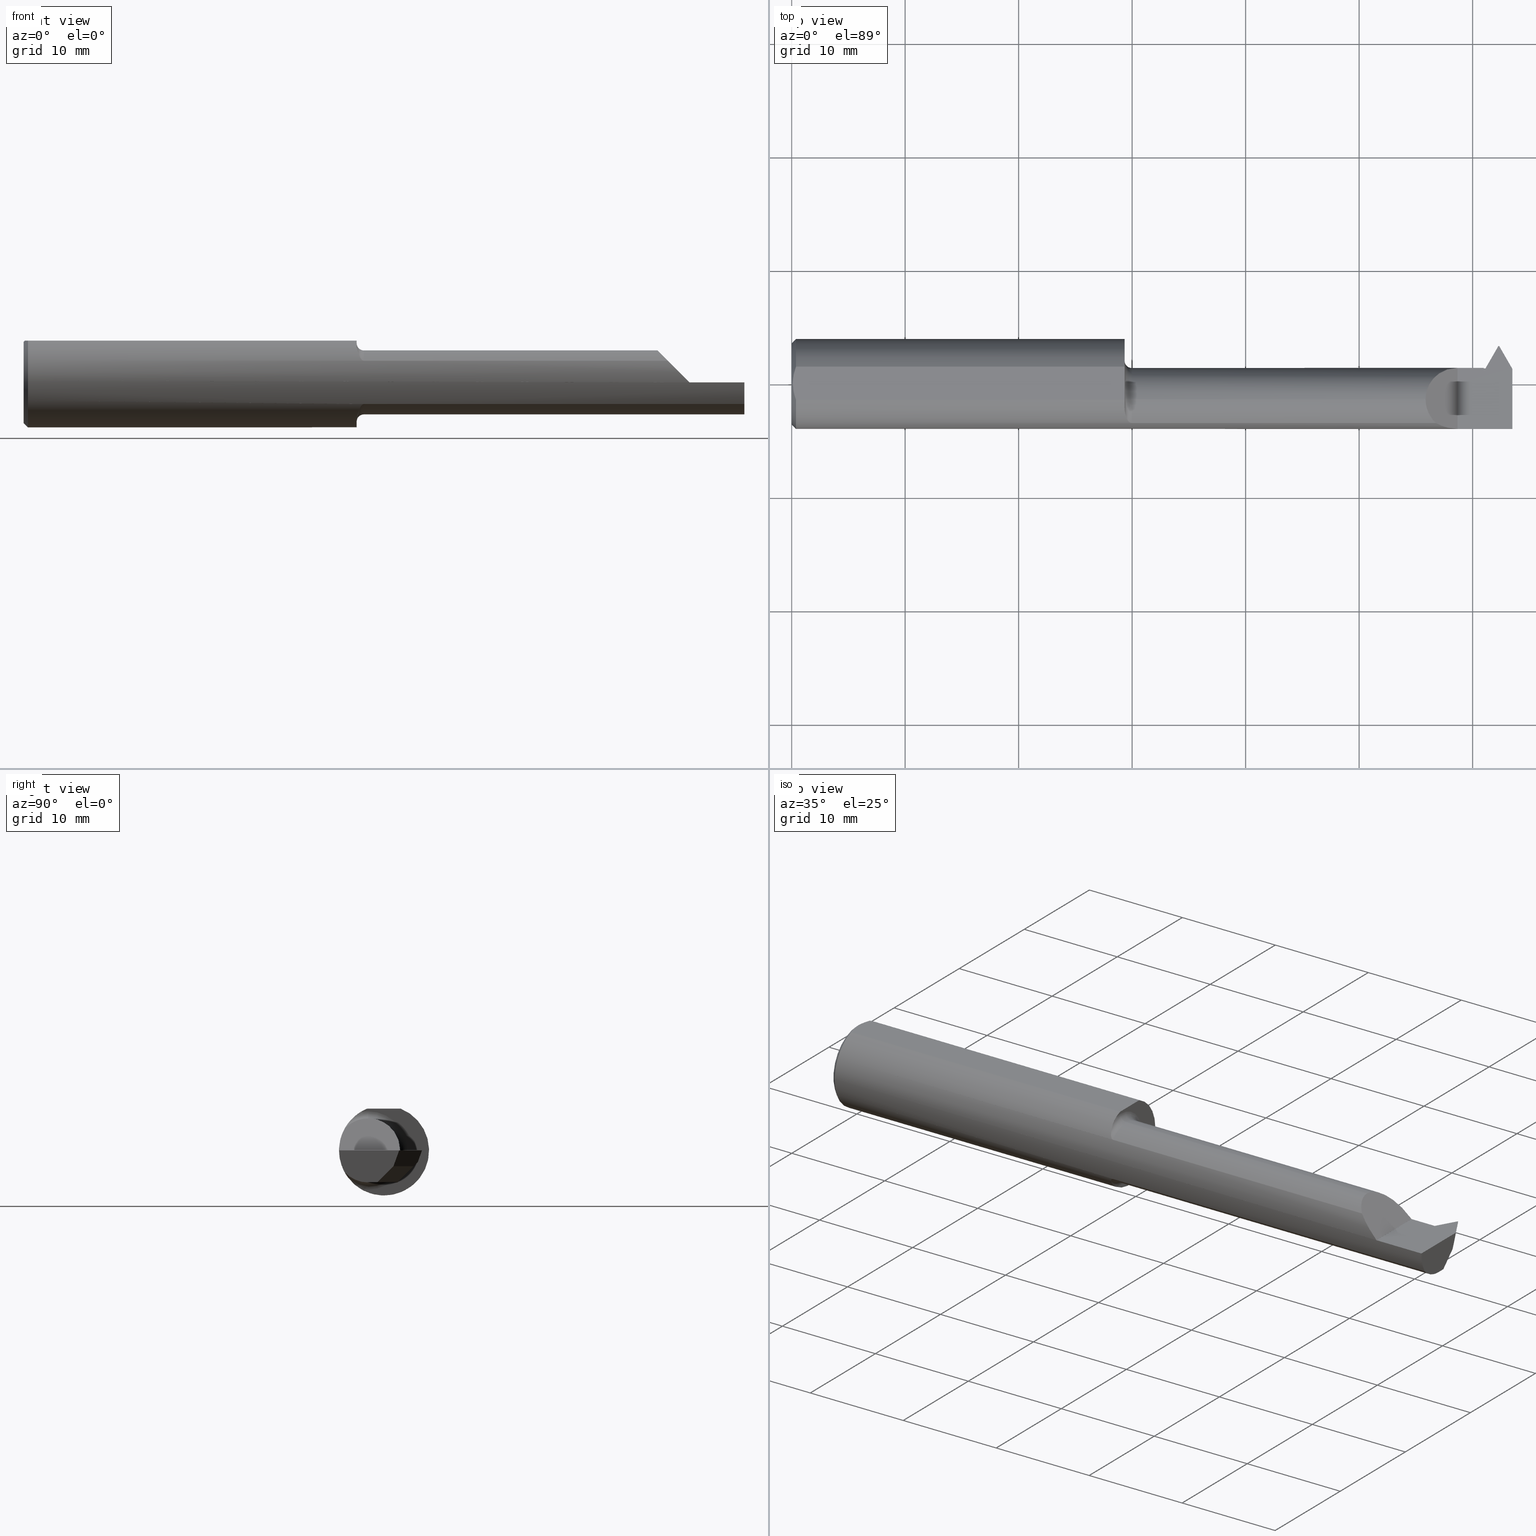
[diagram: canonical four-view strip — front | top / right | iso, engineering-drawing reading convention]
A machine part, canonical four-view strip (front | top / right | iso — engineering-drawing reading convention). The complete STEP part file that produces these views, byte-faithful:
ISO-10303-21;
HEADER;
FILE_DESCRIPTION (( 'STEP AP203' ),
    '1' );
FILE_NAME ('230316-TT2901250.STEP',
    '2025-04-22T23:03:36',
    ( '' ),
    ( '' ),
    'SwSTEP 2.0',
    'SolidWorks 2024',
    '' );
FILE_SCHEMA (( 'CONFIG_CONTROL_DESIGN' ));
ENDSEC;

DATA;
#1 = DIRECTION ( 'NONE',  ( 0.000000000000000000, 0.000000000000000000, 1.000000000000000000 ) ) ;
#2 = CARTESIAN_POINT ( 'NONE',  ( 0.01499999999999970281, 0.000000000000000000, 0.000000000000000000 ) ) ;
#3 = TOROIDAL_SURFACE ( 'NONE', #127, 0.1360000000000000098, 0.02500000000000000139 ) ;
#4 = DIRECTION ( 'NONE',  ( 0.000000000000000000, 0.000000000000000000, -1.000000000000000000 ) ) ;
#5 = AXIS2_PLACEMENT_3D ( 'NONE', #320, #689, #88 ) ;
#6 = B_SPLINE_CURVE_WITH_KNOTS ( 'NONE', 3,
 ( #17, #317, #382, #675, #607, #13, #903, #243, #924, #474, #104, #484, #115, #462 ),
 .UNSPECIFIED., .F., .F.,
 ( 4, 2, 2, 2, 2, 2, 4 ),
 ( 0.000000000000000000, 0.0001427501031775189650, 0.0002855002063550383094, 0.0005710004127100784619, 0.001142000825420159743, 0.001713001238130241024, 0.002284001650840322521 ),
 .UNSPECIFIED. ) ;
#7 = DIRECTION ( 'NONE',  ( 0.9947640934854949935, 0.01818544582510440988, 0.1005668328631443009 ) ) ;
#8 = VERTEX_POINT ( 'NONE', #734 ) ;
#9 = EDGE_CURVE ( 'NONE', #371, #957, #878, .T. ) ;
#10 = CARTESIAN_POINT ( 'NONE',  ( 2.416945011551441258, 0.1082368857768037929, -0.1110000000000011672 ) ) ;
#11 = FACE_OUTER_BOUND ( 'NONE', #887, .T. ) ;
#12 = ORIENTED_EDGE ( 'NONE', *, *, #326, .F. ) ;
#13 = CARTESIAN_POINT ( 'NONE',  ( 1.169135453872435892, -0.1320388560634702391, 0.08332276230954653584 ) ) ;
#14 = CARTESIAN_POINT ( 'NONE',  ( 2.412458785480013024, -0.03604562016029463911, -0.1350000000000000644 ) ) ;
#15 = ORIENTED_EDGE ( 'NONE', *, *, #684, .F. ) ;
#16 = LINE ( 'NONE', #531, #591 ) ;
#17 = CARTESIAN_POINT ( 'NONE',  ( 1.180000000000000160, -0.1368622504537204410, 0.07507286061382698050 ) ) ;
#18 = EDGE_CURVE ( 'NONE', #233, #297, #145, .T. ) ;
#19 = AXIS2_PLACEMENT_3D ( 'NONE', #846, #909, #172 ) ;
#20 = FACE_OUTER_BOUND ( 'NONE', #257, .T. ) ;
#21 = LOCAL_TIME ( 16, 3, 36.00000000000000000, #860 ) ;
#22 = ADVANCED_FACE ( 'NONE', ( #519 ), #812, .F. ) ;
#23 = ORIENTED_EDGE ( 'NONE', *, *, #383, .F. ) ;
#24 = CARTESIAN_POINT ( 'NONE',  ( 0.000000000000000000, 1.819825143532968629E-17, 0.1411000000000003085 ) ) ;
#25 = DIRECTION ( 'NONE',  ( -0.000000000000000000, 1.000000000000000000, -0.000000000000000000 ) ) ;
#26 = DIRECTION ( 'NONE',  ( 0.000000000000000000, 0.000000000000000000, -1.000000000000000000 ) ) ;
#27 = ORIENTED_EDGE ( 'NONE', *, *, #676, .F. ) ;
#28 = DIRECTION ( 'NONE',  ( 0.7071067811865483499, 8.659560562354922997E-17, 0.7071067811865466846 ) ) ;
#29 = PLANE ( 'NONE',  #188 ) ;
#30 = LINE ( 'NONE', #914, #156 ) ;
#31 = ORIENTED_EDGE ( 'NONE', *, *, #150, .F. ) ;
#32 = ADVANCED_FACE ( 'NONE', ( #11 ), #239, .F. ) ;
#33 = DIRECTION ( 'NONE',  ( 0.000000000000000000, 0.000000000000000000, -1.000000000000000000 ) ) ;
#34 = AXIS2_PLACEMENT_3D ( 'NONE', #889, #384, #677 ) ;
#35 = CARTESIAN_POINT ( 'NONE',  ( 1.155000000000000027, -0.05509999999999999620, 0.000000000000000000 ) ) ;
#36 = LOCAL_TIME ( 16, 3, 36.00000000000000000, #864 ) ;
#37 = ORIENTED_EDGE ( 'NONE', *, *, #137, .F. ) ;
#38 = CC_DESIGN_PERSON_AND_ORGANIZATION_ASSIGNMENT ( #336, #634, ( #752 ) ) ;
#39 = LINE ( 'NONE', #415, #728 ) ;
#40 = CARTESIAN_POINT ( 'NONE',  ( 1.155000000000000027, -0.05509999999999999620, 0.000000000000000000 ) ) ;
#41 = EDGE_CURVE ( 'NONE', #890, #160, #497, .T. ) ;
#42 = VERTEX_POINT ( 'NONE', #380 ) ;
#43 = CARTESIAN_POINT ( 'NONE',  ( 2.500000000000000000, 0.03276743523313500189, -0.05500000000000003497 ) ) ;
#44 = CARTESIAN_POINT ( 'NONE',  ( 2.406716679003209070, 0.05389999999999999653, 0.000000000000000000 ) ) ;
#45 = ORIENTED_EDGE ( 'NONE', *, *, #410, .F. ) ;
#46 = LINE ( 'NONE', #949, #575 ) ;
#47 = DIRECTION ( 'NONE',  ( -1.000000000000000000, -0.000000000000000000, -0.000000000000000000 ) ) ;
#48 = ADVANCED_FACE ( 'NONE', ( #80 ), #749, .F. ) ;
#49 = ORIENTED_EDGE ( 'NONE', *, *, #224, .F. ) ;
#50 = ADVANCED_FACE ( 'NONE', ( #376 ), #229, .F. ) ;
#51 = MECHANICAL_CONTEXT ( 'NONE', #724, 'mechanical' ) ;
#52 = AXIS2_PLACEMENT_3D ( 'NONE', #14, #91, #673 ) ;
#53 = EDGE_CURVE ( 'NONE', #297, #292, #698, .T. ) ;
#54 = VECTOR ( 'NONE', #25, 39.37007874015748143 ) ;
#55 = CARTESIAN_POINT ( 'NONE',  ( 2.400999999999999801, 0.05389999999999999653, 0.000000000000000000 ) ) ;
#56 = CARTESIAN_POINT ( 'NONE',  ( 2.522557777814836477, -0.7168287149263680158, -1.006480143352121770 ) ) ;
#57 = EDGE_LOOP ( 'NONE', ( #853, #240, #561, #457, #534 ) ) ;
#58 = LINE ( 'NONE', #937, #886 ) ;
#59 = CARTESIAN_POINT ( 'NONE',  ( 1.163312382054487060, -0.1243204233981917706, -0.09465517963088572462 ) ) ;
#60 = LINE ( 'NONE', #56, #897 ) ;
#61 = EDGE_LOOP ( 'NONE', ( #707, #140, #92, #655, #45 ) ) ;
#62 = CARTESIAN_POINT ( 'NONE',  ( 1.161298582722805062, -0.1198197303235668532, -0.1003181488768664781 ) ) ;
#63 = ADVANCED_FACE ( 'NONE', ( #20 ), #522, .F. ) ;
#64 = CARTESIAN_POINT ( 'NONE',  ( 1.780499999999999972, -0.1368622504537204410, -0.07507286061382698050 ) ) ;
#65 = VERTEX_POINT ( 'NONE', #86 ) ;
#66 = VECTOR ( 'NONE', #873, 39.37007874015748143 ) ;
#67 = APPLICATION_CONTEXT ( 'configuration controlled 3d designs of mechanical parts and assemblies' ) ;
#68 = APPROVAL_PERSON_ORGANIZATION ( #782, #452, #278 ) ;
#69 = CARTESIAN_POINT ( 'NONE',  ( 2.412458785480013024, -0.03604562016029463911, -0.1350000000000000644 ) ) ;
#70 = CARTESIAN_POINT ( 'NONE',  ( 1.180000000000000160, -0.1368622504537204410, -0.07507286061382698050 ) ) ;
#71 = ORIENTED_EDGE ( 'NONE', *, *, #367, .F. ) ;
#72 = EDGE_CURVE ( 'NONE', #793, #180, #270, .T. ) ;
#73 = VERTEX_POINT ( 'NONE', #244 ) ;
#74 = CARTESIAN_POINT ( 'NONE',  ( 2.211790491667020575, -0.1155267122845504424, 0.09830950833298025826 ) ) ;
#75 = CARTESIAN_POINT ( 'NONE',  ( 2.412458785480013024, 0.03700406005429841827, -0.06195031978540700007 ) ) ;
#76 = CARTESIAN_POINT ( 'NONE',  ( 2.399999999999999911, 0.1173411906293525125, -0.04000000000000000083 ) ) ;
#77 = ADVANCED_BREP_SHAPE_REPRESENTATION ( '230316-TT2901250', ( #567, #443 ), #378 ) ;
#78 = CARTESIAN_POINT ( 'NONE',  ( 1.155000000000000027, 0.000000000000000000, 0.000000000000000000 ) ) ;
#79 = ADVANCED_FACE ( 'NONE', ( #595 ), #619, .F. ) ;
#80 = FACE_OUTER_BOUND ( 'NONE', #84, .T. ) ;
#81 = VERTEX_POINT ( 'NONE', #602 ) ;
#82 = LOCAL_TIME ( 16, 3, 36.00000000000000000, #923 ) ;
#83 = DIRECTION ( 'NONE',  ( 0.5000000000000022204, -0.8660254037844373753, 0.000000000000000000 ) ) ;
#84 = EDGE_LOOP ( 'NONE', ( #144, #605 ) ) ;
#85 = CARTESIAN_POINT ( 'NONE',  ( 2.412458785480013024, 0.006850319785407048105, -0.09210406005429837284 ) ) ;
#86 = CARTESIAN_POINT ( 'NONE',  ( 1.155000000000000027, -0.08082776769509972259, 0.1335443071397166837 ) ) ;
#87 = ORIENTED_EDGE ( 'NONE', *, *, #662, .T. ) ;
#88 = DIRECTION ( 'NONE',  ( 0.000000000000000000, 0.000000000000000000, -1.000000000000000000 ) ) ;
#89 = CARTESIAN_POINT ( 'NONE',  ( 2.500000000000000000, 0.04656774611420267523, -0.01684164052992337748 ) ) ;
#90 = EDGE_CURVE ( 'NONE', #802, #291, #899, .T. ) ;
#91 = DIRECTION ( 'NONE',  ( -1.000000000000000000, 0.000000000000000000, 0.000000000000000000 ) ) ;
#92 = ORIENTED_EDGE ( 'NONE', *, *, #370, .T. ) ;
#93 = CARTESIAN_POINT ( 'NONE',  ( 1.155000000000000027, -0.05509999999999999620, 0.000000000000000000 ) ) ;
#94 = CARTESIAN_POINT ( 'NONE',  ( 0.000000000000000000, 0.000000000000000000, 0.000000000000000000 ) ) ;
#95 = DIRECTION ( 'NONE',  ( -1.000000000000000000, 0.000000000000000000, 0.000000000000000000 ) ) ;
#96 = AXIS2_PLACEMENT_3D ( 'NONE', #94, #406, #479 ) ;
#97 = PERSON ( 'UNSPECIFIED', 'UNSPECIFIED', 'UNSPECIFIED', ('UNSPECIFIED'), ('UNSPECIFIED'), ('UNSPECIFIED') ) ;
#98 = ORIENTED_EDGE ( 'NONE', *, *, #593, .T. ) ;
#99 = CARTESIAN_POINT ( 'NONE',  ( 0.01499999999999970281, 1.911673653469018068E-17, 0.1560999999999999888 ) ) ;
#100 = DIRECTION ( 'NONE',  ( 0.000000000000000000, 0.000000000000000000, -1.000000000000000000 ) ) ;
#101 = CARTESIAN_POINT ( 'NONE',  ( 1.155000000000000027, -0.05509999999999999620, -0.1360000000000000098 ) ) ;
#102 = ORIENTED_EDGE ( 'NONE', *, *, #284, .F. ) ;
#103 = DIRECTION ( 'NONE',  ( -1.000000000000000000, -0.000000000000000000, -0.000000000000000000 ) ) ;
#104 = CARTESIAN_POINT ( 'NONE',  ( 1.156962149267435569, -0.1047579505689460039, 0.1159640188207535366 ) ) ;
#105 = CC_DESIGN_DATE_AND_TIME_ASSIGNMENT ( #711, #640, ( #790 ) ) ;
#106 = EDGE_CURVE ( 'NONE', #530, #628, #709, .T. ) ;
#107 = EDGE_LOOP ( 'NONE', ( #12, #196, #377, #15 ) ) ;
#108 =( NAMED_UNIT ( * ) PLANE_ANGLE_UNIT ( ) SI_UNIT ( $, .RADIAN. ) );
#109 = CARTESIAN_POINT ( 'NONE',  ( 2.500000000000000000, -0.1560999999999999888, -3.979970649922725226E-17 ) ) ;
#110 = AXIS2_PLACEMENT_3D ( 'NONE', #312, #904, #396 ) ;
#111 = DIRECTION ( 'NONE',  ( 0.4999999999999998335, -0.8660254037844385966, 0.000000000000000000 ) ) ;
#112 = VECTOR ( 'NONE', #308, 39.37007874015748854 ) ;
#113 = CC_DESIGN_APPROVAL ( #426, ( #189 ) ) ;
#114 = ORIENTED_EDGE ( 'NONE', *, *, #583, .F. ) ;
#115 = CARTESIAN_POINT ( 'NONE',  ( 1.155000000000000249, -0.08722028877555595971, 0.1296752301274216590 ) ) ;
#116 = DIRECTION ( 'NONE',  ( -0.7071067811865489050, 0.000000000000000000, -0.7071067811865462405 ) ) ;
#117 = VERTEX_POINT ( 'NONE', #705 ) ;
#118 = CALENDAR_DATE ( 2025, 22, 4 ) ;
#119 = EDGE_CURVE ( 'NONE', #418, #355, #616, .T. ) ;
#120 = FACE_OUTER_BOUND ( 'NONE', #319, .T. ) ;
#121 = DIRECTION ( 'NONE',  ( -0.9840406976462907629, -2.688249605549001753E-15, 0.1779435454738421407 ) ) ;
#122 = ADVANCED_FACE ( 'NONE', ( #412 ), #187, .T. ) ;
#123 = ORIENTED_EDGE ( 'NONE', *, *, #505, .F. ) ;
#124 = CALENDAR_DATE ( 2025, 22, 4 ) ;
#125 = DIRECTION ( 'NONE',  ( 1.000000000000000000, -0.000000000000000000, -0.000000000000000000 ) ) ;
#126 = DIRECTION ( 'NONE',  ( 0.5000000000000046629, 0.000000000000000000, -0.8660254037844359321 ) ) ;
#127 = AXIS2_PLACEMENT_3D ( 'NONE', #910, #174, #471 ) ;
#128 = VERTEX_POINT ( 'NONE', #101 ) ;
#129 = PERSON_AND_ORGANIZATION ( #97, #255 ) ;
#130 = AXIS2_PLACEMENT_3D ( 'NONE', #898, #518, #588 ) ;
#131 =( BOUNDED_CURVE ( )  B_SPLINE_CURVE ( 3, ( #721, #726, #865, #435 ),
 .UNSPECIFIED., .F., .F. ) 
 B_SPLINE_CURVE_WITH_KNOTS ( ( 4, 4 ),
 ( 4.713029595418895212, 5.214101826882463264 ),
 .UNSPECIFIED. ) 
 CURVE ( )  GEOMETRIC_REPRESENTATION_ITEM ( )  RATIONAL_B_SPLINE_CURVE ( ( 1.000000000000000000, 0.9791864302132653464, 0.9791864302132653464, 1.000000000000000000 ) ) 
 REPRESENTATION_ITEM ( '' )  );
#132 = PLANE ( 'NONE',  #333 ) ;
#133 = CARTESIAN_POINT ( 'NONE',  ( 0.01499999999999970281, 0.05756040305626781983, 0.1450999999999999512 ) ) ;
#134 = VERTEX_POINT ( 'NONE', #761 ) ;
#135 = PERSON_AND_ORGANIZATION ( #97, #255 ) ;
#136 = ORIENTED_EDGE ( 'NONE', *, *, #398, .F. ) ;
#137 = EDGE_CURVE ( 'NONE', #437, #303, #612, .T. ) ;
#138 = CARTESIAN_POINT ( 'NONE',  ( 2.406716679003209070, 0.05389999999999999653, 0.000000000000000000 ) ) ;
#139 = CARTESIAN_POINT ( 'NONE',  ( 0.01499999999999970281, 0.000000000000000000, -0.1560999999999999888 ) ) ;
#140 = ORIENTED_EDGE ( 'NONE', *, *, #760, .F. ) ;
#141 = ORIENTED_EDGE ( 'NONE', *, *, #284, .T. ) ;
#142 = FACE_OUTER_BOUND ( 'NONE', #825, .T. ) ;
#143 = LINE ( 'NONE', #499, #542 ) ;
#144 = ORIENTED_EDGE ( 'NONE', *, *, #398, .T. ) ;
#145 = CIRCLE ( 'NONE', #788, 0.1560999999999999888 ) ;
#146 = AXIS2_PLACEMENT_3D ( 'NONE', #954, #125, #424 ) ;
#147 = DIRECTION ( 'NONE',  ( 0.000000000000000000, 0.000000000000000000, 1.000000000000000000 ) ) ;
#148 = ORIENTED_EDGE ( 'NONE', *, *, #383, .T. ) ;
#149 = EDGE_LOOP ( 'NONE', ( #364, #512, #465, #472 ) ) ;
#150 = EDGE_CURVE ( 'NONE', #374, #128, #868, .T. ) ;
#151 = LINE ( 'NONE', #10, #112 ) ;
#152 = ADVANCED_FACE ( 'NONE', ( #537 ), #256, .F. ) ;
#153 = CARTESIAN_POINT ( 'NONE',  ( 2.452999999999999847, 0.1340650635094609855, 0.000000000000000000 ) ) ;
#154 = DIRECTION ( 'NONE',  ( 1.000000000000000000, 0.000000000000000000, 0.000000000000000000 ) ) ;
#155 = ORIENTED_EDGE ( 'NONE', *, *, #106, .F. ) ;
#156 = VECTOR ( 'NONE', #847, 39.37007874015748143 ) ;
#157 = AXIS2_PLACEMENT_3D ( 'NONE', #694, #902, #599 ) ;
#158 = DIRECTION ( 'NONE',  ( -0.000000000000000000, 1.000000000000000000, -0.000000000000000000 ) ) ;
#159 = CARTESIAN_POINT ( 'NONE',  ( 2.310000000000000053, 0.1749999999999999889, -3.979970649922725226E-17 ) ) ;
#160 = VERTEX_POINT ( 'NONE', #248 ) ;
#161 = LINE ( 'NONE', #314, #485 ) ;
#162 = EDGE_CURVE ( 'NONE', #530, #623, #266, .T. ) ;
#163 = DIRECTION ( 'NONE',  ( 0.000000000000000000, 0.000000000000000000, -1.000000000000000000 ) ) ;
#164 = CARTESIAN_POINT ( 'NONE',  ( 2.453000000000000291, 0.03417382318887187548, -0.1350000000000000644 ) ) ;
#165 = ORIENTED_EDGE ( 'NONE', *, *, #162, .T. ) ;
#166 = PLANE ( 'NONE',  #288 ) ;
#167 = DIRECTION ( 'NONE',  ( 1.000000000000000000, 0.000000000000000000, 0.000000000000000000 ) ) ;
#168 = ADVANCED_FACE ( 'NONE', ( #403 ), #554, .F. ) ;
#169 = ORIENTED_EDGE ( 'NONE', *, *, #684, .T. ) ;
#170 = DIRECTION ( 'NONE',  ( 1.000000000000000000, 0.000000000000000000, 0.000000000000000000 ) ) ;
#171 = AXIS2_PLACEMENT_3D ( 'NONE', #334, #271, #920 ) ;
#172 = DIRECTION ( 'NONE',  ( 0.000000000000000000, -0.7071067811865435759, -0.7071067811865513475 ) ) ;
#173 = AXIS2_PLACEMENT_3D ( 'NONE', #448, #736, #225 ) ;
#174 = DIRECTION ( 'NONE',  ( 1.000000000000000000, 0.000000000000000000, 0.000000000000000000 ) ) ;
#175 = ORIENTED_EDGE ( 'NONE', *, *, #9, .T. ) ;
#176 = DIRECTION ( 'NONE',  ( 0.7745966692414795185, -0.4472135954999614249, 0.4472135954999612584 ) ) ;
#177 = LINE ( 'NONE', #109, #513 ) ;
#178 = B_SPLINE_CURVE_WITH_KNOTS ( 'NONE', 3,
 ( #919, #411, #700, #62, #59, #708, #366, #289, #656, #360, #573, #650 ),
 .UNSPECIFIED., .F., .F.,
 ( 4, 2, 2, 2, 2, 4 ),
 ( 0.000000000000000000, 0.001123756246128505441, 0.001685634369192758487, 0.001966573430724887286, 0.002107042961490952770, 0.002247512492257017387 ),
 .UNSPECIFIED. ) ;
#179 = CARTESIAN_POINT ( 'NONE',  ( 0.01499999999999970975, -0.05756040305626781983, 0.1450999999999999512 ) ) ;
#180 = VERTEX_POINT ( 'NONE', #489 ) ;
#181 = CARTESIAN_POINT ( 'NONE',  ( 2.412458785480013024, 0.03700406005429841827, -0.06195031978540700007 ) ) ;
#182 = DIRECTION ( 'NONE',  ( 0.000000000000000000, 0.000000000000000000, -1.000000000000000000 ) ) ;
#183 = EDGE_LOOP ( 'NONE', ( #446, #866, #220 ) ) ;
#184 = PERSON_AND_ORGANIZATION_ROLE ( 'creator' ) ;
#185 = DIRECTION ( 'NONE',  ( 0.000000000000000000, -1.000000000000000000, 7.353467429283449659E-15 ) ) ;
#186 = VECTOR ( 'NONE', #260, 39.37007874015748854 ) ;
#187 = CYLINDRICAL_SURFACE ( 'NONE', #589, 0.1110000000000000014 ) ;
#188 = AXIS2_PLACEMENT_3D ( 'NONE', #611, #547, #775 ) ;
#189 = PRODUCT_DEFINITION_FORMATION_WITH_SPECIFIED_SOURCE ( 'ANY', '', #752, .NOT_KNOWN. ) ;
#190 = ORIENTED_EDGE ( 'NONE', *, *, #491, .F. ) ;
#191 = PERSON_AND_ORGANIZATION ( #97, #255 ) ;
#192 = EDGE_CURVE ( 'NONE', #770, #355, #858, .T. ) ;
#193 = EDGE_CURVE ( 'NONE', #355, #291, #691, .T. ) ;
#194 = DIRECTION ( 'NONE',  ( 0.8522042425194481519, -0.4920203488231481015, 0.1779435454738421407 ) ) ;
#195 = FACE_OUTER_BOUND ( 'NONE', #183, .T. ) ;
#196 = ORIENTED_EDGE ( 'NONE', *, *, #309, .T. ) ;
#197 = CALENDAR_DATE ( 2025, 22, 4 ) ;
#198 = CARTESIAN_POINT ( 'NONE',  ( 2.452999999999999847, 0.1340650635094609855, 0.000000000000000000 ) ) ;
#199 = CARTESIAN_POINT ( 'NONE',  ( 2.199100000000000943, 0.009875857480521079562, 0.1110000000000000014 ) ) ;
#200 = ORIENTED_EDGE ( 'NONE', *, *, #137, .T. ) ;
#201 = PERSON_AND_ORGANIZATION_ROLE ( 'design_supplier' ) ;
#202 = CARTESIAN_POINT ( 'NONE',  ( 2.444791270918813986, 0.09860446847498335887, -0.05873672215436936961 ) ) ;
#203 = DIRECTION ( 'NONE',  ( 0.7745966692414795185, -0.4472135954999614249, 0.4472135954999612584 ) ) ;
#204 = VECTOR ( 'NONE', #328, 39.37007874015748143 ) ;
#205 = ORIENTED_EDGE ( 'NONE', *, *, #952, .F. ) ;
#206 = DATE_AND_TIME ( #572, #685 ) ;
#207 = VECTOR ( 'NONE', #831, 39.37007874015748854 ) ;
#208 = LOCAL_TIME ( 16, 3, 36.00000000000000000, #431 ) ;
#209 = ORIENTED_EDGE ( 'NONE', *, *, #232, .T. ) ;
#210 = LINE ( 'NONE', #502, #808 ) ;
#211 = CC_DESIGN_PERSON_AND_ORGANIZATION_ASSIGNMENT ( #129, #482, ( #654 ) ) ;
#212 = CARTESIAN_POINT ( 'NONE',  ( 2.400999999999999801, 0.05590000000000001218, 0.000000000000000000 ) ) ;
#213 = VERTEX_POINT ( 'NONE', #560 ) ;
#214 = ORIENTED_EDGE ( 'NONE', *, *, #548, .T. ) ;
#215 = LINE ( 'NONE', #718, #934 ) ;
#216 = CARTESIAN_POINT ( 'NONE',  ( 2.199100000000000499, -0.05509999999999999620, 0.1110000000000000014 ) ) ;
#217 = ORIENTED_EDGE ( 'NONE', *, *, #242, .T. ) ;
#218 = FACE_OUTER_BOUND ( 'NONE', #57, .T. ) ;
#219 = CARTESIAN_POINT ( 'NONE',  ( 1.155000000000000027, 0.04536493059887179019, -0.04719955211401773848 ) ) ;
#220 = ORIENTED_EDGE ( 'NONE', *, *, #896, .F. ) ;
#221 = ADVANCED_FACE ( 'NONE', ( #195 ), #549, .F. ) ;
#222 = CONICAL_SURFACE ( 'NONE', #5, 0.1560999999999999888, 0.7853981633974471688 ) ;
#223 = ADVANCED_FACE ( 'NONE', ( #420 ), #3, .F. ) ;
#224 = EDGE_CURVE ( 'NONE', #587, #770, #30, .T. ) ;
#225 = DIRECTION ( 'NONE',  ( 0.000000000000000000, 0.000000000000000000, 1.000000000000000000 ) ) ;
#226 = EDGE_LOOP ( 'NONE', ( #645, #408 ) ) ;
#227 = APPROVAL ( #644, 'UNSPECIFIED' ) ;
#228 = DIRECTION ( 'NONE',  ( 0.000000000000000000, 0.000000000000000000, 1.000000000000000000 ) ) ;
#229 = PLANE ( 'NONE',  #302 ) ;
#230 = ORIENTED_EDGE ( 'NONE', *, *, #529, .F. ) ;
#231 = DIRECTION ( 'NONE',  ( 0.000000000000000000, 0.000000000000000000, -1.000000000000000000 ) ) ;
#232 = EDGE_CURVE ( 'NONE', #303, #117, #665, .T. ) ;
#233 = VERTEX_POINT ( 'NONE', #179 ) ;
#234 = CARTESIAN_POINT ( 'NONE',  ( 2.500000000000000000, -0.1560999999999999333, -3.979970649922725226E-17 ) ) ;
#235 = VECTOR ( 'NONE', #715, 39.37007874015748143 ) ;
#236 = VECTOR ( 'NONE', #158, 39.37007874015748143 ) ;
#237 = VECTOR ( 'NONE', #28, 39.37007874015748143 ) ;
#238 = CARTESIAN_POINT ( 'NONE',  ( 2.414716234995701871, 0.02897099956963808051, -0.07389339752676279960 ) ) ;
#239 = PLANE ( 'NONE',  #556 ) ;
#240 = ORIENTED_EDGE ( 'NONE', *, *, #428, .F. ) ;
#241 = FACE_BOUND ( 'NONE', #798, .T. ) ;
#242 = EDGE_CURVE ( 'NONE', #716, #587, #475, .T. ) ;
#243 = CARTESIAN_POINT ( 'NONE',  ( 1.163324357153332711, -0.1243322553945040709, 0.09463600456597345834 ) ) ;
#244 = CARTESIAN_POINT ( 'NONE',  ( 2.446168426406539975, 0.04634119062935252581, -0.1110000000000007092 ) ) ;
#245 = ORIENTED_EDGE ( 'NONE', *, *, #478, .F. ) ;
#246 = CARTESIAN_POINT ( 'NONE',  ( 2.199100000000000499, -0.08664595039291324297, 0.1110000000000000431 ) ) ;
#247 = PLANE ( 'NONE',  #772 ) ;
#248 = CARTESIAN_POINT ( 'NONE',  ( 2.500000000000000000, -0.1368622504537203854, -0.07507286061382703601 ) ) ;
#249 = ORIENTED_EDGE ( 'NONE', *, *, #193, .T. ) ;
#250 = CARTESIAN_POINT ( 'NONE',  ( 2.235027139386173367, -0.1368622504537203854, 0.07507286061382700826 ) ) ;
#251 = EDGE_CURVE ( 'NONE', #42, #716, #933, .T. ) ;
#252 = VECTOR ( 'NONE', #407, 39.37007874015748143 ) ;
#253 = AXIS2_PLACEMENT_3D ( 'NONE', #78, #373, #231 ) ;
#254 = CARTESIAN_POINT ( 'NONE',  ( 2.500000000000000000, 0.1097552276659281845, -0.1110000000000011811 ) ) ;
#255 = ORGANIZATION ( 'UNSPECIFIED', 'UNSPECIFIED', '' ) ;
#256 = PLANE ( 'NONE',  #171 ) ;
#257 = EDGE_LOOP ( 'NONE', ( #762, #953, #581, #795 ) ) ;
#258 = CARTESIAN_POINT ( 'NONE',  ( 0.000000000000000000, 0.000000000000000000, 0.000000000000000000 ) ) ;
#259 = CARTESIAN_POINT ( 'NONE',  ( 2.459831573593460607, 0.1023411906293526935, -0.05500000000000002803 ) ) ;
#260 = DIRECTION ( 'NONE',  ( 0.5000000000000026645, 0.8660254037844370423, 0.000000000000000000 ) ) ;
#261 = ORIENTED_EDGE ( 'NONE', *, *, #461, .T. ) ;
#262 = PERSON_AND_ORGANIZATION ( #97, #255 ) ;
#263 =( BOUNDED_CURVE ( )  B_SPLINE_CURVE ( 3, ( #269, #626, #264, #856 ),
 .UNSPECIFIED., .F., .T. ) 
 B_SPLINE_CURVE_WITH_KNOTS ( ( 4, 4 ),
 ( 3.320488901919218083, 4.452078972209921659 ),
 .UNSPECIFIED. ) 
 CURVE ( )  GEOMETRIC_REPRESENTATION_ITEM ( )  RATIONAL_B_SPLINE_CURVE ( ( 1.000000000000000000, 0.8961084394353004967, 0.8961084394353004967, 1.000000000000000000 ) ) 
 REPRESENTATION_ITEM ( '' )  );
#264 = CARTESIAN_POINT ( 'NONE',  ( 2.416039260333789240, 0.02654051824741836610, -0.08726758657088898308 ) ) ;
#265 = B_SPLINE_CURVE_WITH_KNOTS ( 'NONE', 3,
 ( #133, #436, #440, #362, #729, #653 ),
 .UNSPECIFIED., .F., .F.,
 ( 4, 2, 4 ),
 ( 0.003161694502929457244, 0.003901142131335591512, 0.004640589759741725780 ),
 .UNSPECIFIED. ) ;
#266 = LINE ( 'NONE', #776, #425 ) ;
#267 = ORIENTED_EDGE ( 'NONE', *, *, #232, .F. ) ;
#268 = EDGE_CURVE ( 'NONE', #160, #381, #580, .T. ) ;
#269 = CARTESIAN_POINT ( 'NONE',  ( 2.419930999995322018, -0.05510000000000081499, -0.1109999999999999876 ) ) ;
#270 = CIRCLE ( 'NONE', #347, 0.1560999999999999888 ) ;
#271 = DIRECTION ( 'NONE',  ( 6.838619348754694708E-15, -0.9396926207859128688, 0.3420201433256563894 ) ) ;
#272 = CIRCLE ( 'NONE', #393, 0.02499999999999999098 ) ;
#273 = ORIENTED_EDGE ( 'NONE', *, *, #635, .F. ) ;
#274 = APPROVAL_DATE_TIME ( #932, #426 ) ;
#275 = DIRECTION ( 'NONE',  ( 0.000000000000000000, 0.7071067811865474617, 0.7071067811865474617 ) ) ;
#276 = CARTESIAN_POINT ( 'NONE',  ( 1.155000000000000027, -0.05509999999999999620, 0.000000000000000000 ) ) ;
#277 = ORIENTED_EDGE ( 'NONE', *, *, #192, .F. ) ;
#278 = APPROVAL_ROLE ( '' ) ;
#279 = DIRECTION ( 'NONE',  ( 0.5000000000000026645, 0.8660254037844369313, 0.000000000000000000 ) ) ;
#280 = CARTESIAN_POINT ( 'NONE',  ( 2.392464930598871664, 0.04536493059887180407, -0.04719955211401773154 ) ) ;
#281 = ORIENTED_EDGE ( 'NONE', *, *, #395, .F. ) ;
#282 = DATE_AND_TIME ( #197, #21 ) ;
#283 = CC_DESIGN_PERSON_AND_ORGANIZATION_ASSIGNMENT ( #191, #551, ( #790 ) ) ;
#284 = EDGE_CURVE ( 'NONE', #65, #374, #771, .T. ) ;
#285 = FACE_OUTER_BOUND ( 'NONE', #433, .T. ) ;
#286 = DIRECTION ( 'NONE',  ( 0.000000000000000000, 7.093263402666859258E-15, -1.000000000000000000 ) ) ;
#287 = DIRECTION ( 'NONE',  ( 0.000000000000000000, 0.000000000000000000, -1.000000000000000000 ) ) ;
#288 = AXIS2_PLACEMENT_3D ( 'NONE', #804, #539, #610 ) ;
#289 = CARTESIAN_POINT ( 'NONE',  ( 1.172325674773646575, -0.1344725336059486853, -0.07928898134248278662 ) ) ;
#290 = CARTESIAN_POINT ( 'NONE',  ( 1.155000000000000027, -0.05509999999999998233, 0.1360000000000000098 ) ) ;
#291 = VERTEX_POINT ( 'NONE', #368 ) ;
#292 = VERTEX_POINT ( 'NONE', #723 ) ;
#293 = CARTESIAN_POINT ( 'NONE',  ( 2.500000000000000000, 0.05756040305626781983, 0.1450999999999999512 ) ) ;
#294 = CARTESIAN_POINT ( 'NONE',  ( 1.155000000000000027, -0.08082776769509972259, -0.1335443071397166837 ) ) ;
#295 = EDGE_CURVE ( 'NONE', #931, #447, #60, .T. ) ;
#296 = VERTEX_POINT ( 'NONE', #566 ) ;
#297 = VERTEX_POINT ( 'NONE', #139 ) ;
#298 = EDGE_CURVE ( 'NONE', #418, #926, #877, .T. ) ;
#299 = DIRECTION ( 'NONE',  ( 0.5000000000000026645, -0.8660254037844370423, 6.371388158047651217E-15 ) ) ;
#300 = DIRECTION ( 'NONE',  ( 1.000000000000000000, 0.000000000000000000, 0.000000000000000000 ) ) ;
#301 = ORIENTED_EDGE ( 'NONE', *, *, #41, .T. ) ;
#302 = AXIS2_PLACEMENT_3D ( 'NONE', #816, #7, #528 ) ;
#303 = VERTEX_POINT ( 'NONE', #574 ) ;
#304 = VECTOR ( 'NONE', #299, 39.37007874015748854 ) ;
#305 = LINE ( 'NONE', #661, #498 ) ;
#306 = DIRECTION ( 'NONE',  ( 0.4999999999999998335, 0.000000000000000000, 0.8660254037844385966 ) ) ;
#307 = ORIENTED_EDGE ( 'NONE', *, *, #664, .T. ) ;
#308 = DIRECTION ( 'NONE',  ( -0.01827811026638678088, 0.9998329413882549588, -7.352226825046555945E-15 ) ) ;
#309 = EDGE_CURVE ( 'NONE', #42, #437, #423, .T. ) ;
#310 = EDGE_LOOP ( 'NONE', ( #785, #141, #546, #87, #598, #214 ) ) ;
#311 = DIRECTION ( 'NONE',  ( 1.000000000000000000, -0.000000000000000000, -0.000000000000000000 ) ) ;
#312 = CARTESIAN_POINT ( 'NONE',  ( 2.500000000000000000, 0.000000000000000000, 0.000000000000000000 ) ) ;
#313 = ORIENTED_EDGE ( 'NONE', *, *, #192, .T. ) ;
#314 = CARTESIAN_POINT ( 'NONE',  ( 2.400999999999999801, 0.05389999999999999653, 0.000000000000000000 ) ) ;
#315 = VECTOR ( 'NONE', #880, 39.37007874015748143 ) ;
#316 = VECTOR ( 'NONE', #372, 39.37007874015748854 ) ;
#317 = CARTESIAN_POINT ( 'NONE',  ( 1.178086506300958236, -0.1368622504537204410, 0.07507286061382698050 ) ) ;
#318 = CARTESIAN_POINT ( 'NONE',  ( 2.310000000000000053, 0.000000000000000000, 0.000000000000000000 ) ) ;
#319 = EDGE_LOOP ( 'NONE', ( #592, #832, #148, #702, #249, #421 ) ) ;
#320 = CARTESIAN_POINT ( 'NONE',  ( 0.01499999999999970281, 0.000000000000000000, 0.000000000000000000 ) ) ;
#321 = CARTESIAN_POINT ( 'NONE',  ( 1.180000000000000160, -0.05509999999999999620, -0.1360000000000000098 ) ) ;
#322 = DIRECTION ( 'NONE',  ( 0.1779435454738421407, 0.000000000000000000, 0.9840406976462907629 ) ) ;
#323 = EDGE_CURVE ( 'NONE', #643, #213, #511, .T. ) ;
#324 = EDGE_LOOP ( 'NONE', ( #27, #165, #582, #840, #586, #175 ) ) ;
#325 = DIRECTION ( 'NONE',  ( 0.001253963230749038449, 0.3420198744252466172, 0.9396918819881091567 ) ) ;
#326 = EDGE_CURVE ( 'NONE', #42, #180, #807, .T. ) ;
#327 = FACE_OUTER_BOUND ( 'NONE', #324, .T. ) ;
#328 = DIRECTION ( 'NONE',  ( -1.000000000000000000, -7.277506705368410665E-15, 0.000000000000000000 ) ) ;
#329 = ORIENTED_EDGE ( 'NONE', *, *, #242, .F. ) ;
#330 = CARTESIAN_POINT ( 'NONE',  ( 0.000000000000000000, 0.000000000000000000, -0.1411000000000003085 ) ) ;
#331 = VECTOR ( 'NONE', #769, 39.37007874015748143 ) ;
#332 = DIRECTION ( 'NONE',  ( -0.000000000000000000, 0.000000000000000000, -1.000000000000000000 ) ) ;
#333 = AXIS2_PLACEMENT_3D ( 'NONE', #138, #935, #796 ) ;
#334 = CARTESIAN_POINT ( 'NONE',  ( 2.396128570000000124, 0.06349597133486835354, -0.1879385241571824017 ) ) ;
#335 = EDGE_LOOP ( 'NONE', ( #399, #617, #261, #413 ) ) ;
#336 = PERSON_AND_ORGANIZATION ( #97, #255 ) ;
#337 = DIRECTION ( 'NONE',  ( -1.000000000000000000, -0.000000000000000000, -0.000000000000000000 ) ) ;
#338 = ADVANCED_FACE ( 'NONE', ( #657 ), #638, .F. ) ;
#339 = EDGE_LOOP ( 'NONE', ( #725, #693, #494, #37, #671, #517, #217, #882, #649 ) ) ;
#340 = DIRECTION ( 'NONE',  ( 1.000000000000000000, 0.000000000000000000, 0.000000000000000000 ) ) ;
#341 = PLANE ( 'NONE',  #823 ) ;
#342 = DIRECTION ( 'NONE',  ( 1.000000000000000000, -0.000000000000000000, -0.000000000000000000 ) ) ;
#343 = VERTEX_POINT ( 'NONE', #294 ) ;
#344 = DIRECTION ( 'NONE',  ( 0.000000000000000000, 0.000000000000000000, 1.000000000000000000 ) ) ;
#345 = EDGE_CURVE ( 'NONE', #73, #81, #507, .T. ) ;
#346 = CARTESIAN_POINT ( 'NONE',  ( 0.003999999999999637526, 1.884449684559922719E-17, 0.1450999999999999512 ) ) ;
#347 = AXIS2_PLACEMENT_3D ( 'NONE', #318, #687, #516 ) ;
#348 = DIRECTION ( 'NONE',  ( -1.000000000000000000, -0.000000000000000000, -0.000000000000000000 ) ) ;
#349 = ORIENTED_EDGE ( 'NONE', *, *, #792, .F. ) ;
#350 =( CONVERSION_BASED_UNIT ( 'INCH', #918 ) LENGTH_UNIT ( ) NAMED_UNIT ( #601 ) );
#351 = CARTESIAN_POINT ( 'NONE',  ( 2.310000000000000053, 0.05590000000000001218, -3.979970649922725226E-17 ) ) ;
#352 = CARTESIAN_POINT ( 'NONE',  ( 2.446168426406539531, 0.1173411906293526652, -0.03999999999999985512 ) ) ;
#353 = VERTEX_POINT ( 'NONE', #941 ) ;
#354 = EDGE_CURVE ( 'NONE', #926, #587, #814, .T. ) ;
#355 = VERTEX_POINT ( 'NONE', #503 ) ;
#356 =( BOUNDED_CURVE ( )  B_SPLINE_CURVE ( 3, ( #75, #238, #680, #85 ),
 .UNSPECIFIED., .F., .T. ) 
 B_SPLINE_CURVE_WITH_KNOTS ( ( 4, 4 ),
 ( 2.948301984786019236, 3.334883322393566996 ),
 .UNSPECIFIED. ) 
 CURVE ( )  GEOMETRIC_REPRESENTATION_ITEM ( )  RATIONAL_B_SPLINE_CURVE ( ( 1.000000000000000000, 0.9875849649017649501, 0.9875849649017649501, 1.000000000000000000 ) ) 
 REPRESENTATION_ITEM ( '' )  );
#357 = CARTESIAN_POINT ( 'NONE',  ( 0.008818052469296599680, -0.03886761757380381710, 0.1450999999999999512 ) ) ;
#358 = DIRECTION ( 'NONE',  ( 0.09000871797897587456, -0.6219594709071027960, -0.7778591435708254176 ) ) ;
#359 = ORIENTED_EDGE ( 'NONE', *, *, #18, .T. ) ;
#360 = CARTESIAN_POINT ( 'NONE',  ( 1.176349781358732471, -0.1364086230541974309, -0.07590362166592549975 ) ) ;
#361 =( BOUNDED_CURVE ( )  B_SPLINE_CURVE ( 3, ( #751, #246, #74, #250 ),
 .UNSPECIFIED., .F., .T. ) 
 B_SPLINE_CURVE_WITH_KNOTS ( ( 4, 4 ),
 ( 0.000000000000000000, 0.8280247010054025969 ),
 .UNSPECIFIED. ) 
 CURVE ( )  GEOMETRIC_REPRESENTATION_ITEM ( )  RATIONAL_B_SPLINE_CURVE ( ( 1.000000000000000000, 0.9436760562907885452, 0.9436760562907885452, 1.000000000000000000 ) ) 
 REPRESENTATION_ITEM ( '' )  );
#362 = CARTESIAN_POINT ( 'NONE',  ( 0.005030132703184393185, 0.01970541148932063516, 0.1450999999999999512 ) ) ;
#363 = AXIS2_PLACEMENT_3D ( 'NONE', #276, #348, #286 ) ;
#364 = ORIENTED_EDGE ( 'NONE', *, *, #251, .F. ) ;
#365 = AXIS2_PLACEMENT_3D ( 'NONE', #565, #488, #570 ) ;
#366 = CARTESIAN_POINT ( 'NONE',  ( 1.169174461442129553, -0.1320749731185601461, -0.08326458372355888260 ) ) ;
#367 = EDGE_CURVE ( 'NONE', #643, #737, #143, .T. ) ;
#368 = CARTESIAN_POINT ( 'NONE',  ( 2.451750000000000096, 0.1318999999999999617, -3.979970649922725226E-17 ) ) ;
#369 = ORIENTED_EDGE ( 'NONE', *, *, #323, .T. ) ;
#370 = EDGE_CURVE ( 'NONE', #292, #134, #265, .T. ) ;
#371 = VERTEX_POINT ( 'NONE', #950 ) ;
#372 = DIRECTION ( 'NONE',  ( 0.000000000000000000, 0.7071067811865474617, 0.7071067811865474617 ) ) ;
#373 = DIRECTION ( 'NONE',  ( 1.000000000000000000, 0.000000000000000000, 0.000000000000000000 ) ) ;
#374 = VERTEX_POINT ( 'NONE', #290 ) ;
#375 = LINE ( 'NONE', #594, #207 ) ;
#376 = FACE_OUTER_BOUND ( 'NONE', #455, .T. ) ;
#377 = ORIENTED_EDGE ( 'NONE', *, *, #921, .T. ) ;
#378 =( GEOMETRIC_REPRESENTATION_CONTEXT ( 3 ) GLOBAL_UNCERTAINTY_ASSIGNED_CONTEXT ( ( #767 ) ) GLOBAL_UNIT_ASSIGNED_CONTEXT ( ( #350, #108, #629 ) ) REPRESENTATION_CONTEXT ( 'NONE', 'WORKASPACE' ) );
#379 = CARTESIAN_POINT ( 'NONE',  ( 2.406716679003209070, 0.05389999999999999653, 0.000000000000000000 ) ) ;
#380 = CARTESIAN_POINT ( 'NONE',  ( 2.310000000000000053, 0.05589995495494588795, 9.999999999973052634E-05 ) ) ;
#381 = VERTEX_POINT ( 'NONE', #70 ) ;
#382 = CARTESIAN_POINT ( 'NONE',  ( 1.176348515781200810, -0.1364107636049785577, 0.07590013438261609957 ) ) ;
#383 = EDGE_CURVE ( 'NONE', #931, #418, #585, .T. ) ;
#384 = DIRECTION ( 'NONE',  ( 1.000000000000000000, 0.000000000000000000, 0.000000000000000000 ) ) ;
#385 = ORIENTED_EDGE ( 'NONE', *, *, #722, .F. ) ;
#386 = CARTESIAN_POINT ( 'NONE',  ( 2.442414596679994165, 0.07650827955772949995, -0.1110000000000009451 ) ) ;
#387 = DIRECTION ( 'NONE',  ( 0.000000000000000000, -0.3401001459858862819, -0.9403892229818348047 ) ) ;
#388 = DIRECTION ( 'NONE',  ( 0.000000000000000000, 0.000000000000000000, -1.000000000000000000 ) ) ;
#389 = EDGE_LOOP ( 'NONE', ( #894, #829, #813, #404, #674 ) ) ;
#390 = DIRECTION ( 'NONE',  ( 0.000000000000000000, 0.000000000000000000, 1.000000000000000000 ) ) ;
#391 = VECTOR ( 'NONE', #342, 39.37007874015748143 ) ;
#392 = AXIS2_PLACEMENT_3D ( 'NONE', #888, #300, #4 ) ;
#393 = AXIS2_PLACEMENT_3D ( 'NONE', #321, #695, #100 ) ;
#394 = CARTESIAN_POINT ( 'NONE',  ( 2.459831573593460607, 0.04634119062935222050, -0.1110000000000010562 ) ) ;
#395 = EDGE_CURVE ( 'NONE', #160, #643, #870, .T. ) ;
#396 = DIRECTION ( 'NONE',  ( 0.000000000000000000, 0.000000000000000000, -1.000000000000000000 ) ) ;
#397 = ADVANCED_FACE ( 'NONE', ( #521 ), #666, .T. ) ;
#398 = EDGE_CURVE ( 'NONE', #476, #568, #821, .T. ) ;
#399 = ORIENTED_EDGE ( 'NONE', *, *, #806, .F. ) ;
#400 = CARTESIAN_POINT ( 'NONE',  ( 0.01499999999999970281, 0.000000000000000000, -0.1560999999999999888 ) ) ;
#401 = FACE_OUTER_BOUND ( 'NONE', #922, .T. ) ;
#402 = CC_DESIGN_DATE_AND_TIME_ASSIGNMENT ( #282, #794, ( #654 ) ) ;
#403 = FACE_OUTER_BOUND ( 'NONE', #107, .T. ) ;
#404 = ORIENTED_EDGE ( 'NONE', *, *, #53, .F. ) ;
#405 = FACE_OUTER_BOUND ( 'NONE', #335, .T. ) ;
#406 = DIRECTION ( 'NONE',  ( -1.000000000000000000, -0.000000000000000000, -0.000000000000000000 ) ) ;
#407 = DIRECTION ( 'NONE',  ( 1.000000000000000000, 0.000000000000000000, 0.000000000000000000 ) ) ;
#408 = ORIENTED_EDGE ( 'NONE', *, *, #735, .T. ) ;
#409 = AXIS2_PLACEMENT_3D ( 'NONE', #696, #47, #719 ) ;
#410 = EDGE_CURVE ( 'NONE', #881, #233, #600, .T. ) ;
#411 = CARTESIAN_POINT ( 'NONE',  ( 1.155000000000000249, -0.09362651965208496074, -0.1257978552532720284 ) ) ;
#412 = FACE_OUTER_BOUND ( 'NONE', #710, .T. ) ;
#413 = ORIENTED_EDGE ( 'NONE', *, *, #345, .F. ) ;
#414 = APPLICATION_PROTOCOL_DEFINITION ( 'international standard', 'config_control_design', 1994, #67 ) ;
#415 = CARTESIAN_POINT ( 'NONE',  ( 1.155000000000000027, 0.1749999999999999889, 0.1450999999999999512 ) ) ;
#416 = CARTESIAN_POINT ( 'NONE',  ( 2.453000000000000291, 0.1141738231888718980, -0.05500000000000004191 ) ) ;
#417 = EDGE_CURVE ( 'NONE', #303, #374, #468, .T. ) ;
#418 = VERTEX_POINT ( 'NONE', #451 ) ;
#419 = CARTESIAN_POINT ( 'NONE',  ( 2.454250000000000043, 0.1318999999999999895, 0.000000000000000000 ) ) ;
#420 = FACE_OUTER_BOUND ( 'NONE', #490, .T. ) ;
#421 = ORIENTED_EDGE ( 'NONE', *, *, #857, .F. ) ;
#422 = APPLICATION_PROTOCOL_DEFINITION ( 'international standard', 'config_control_design', 1994, #724 ) ;
#423 =( BOUNDED_CURVE ( )  B_SPLINE_CURVE ( 3, ( #791, #642, #199, #216 ),
 .UNSPECIFIED., .F., .T. ) 
 B_SPLINE_CURVE_WITH_KNOTS ( ( 4, 4 ),
 ( 4.713289881407453308, 6.283185307179586232 ),
 .UNSPECIFIED. ) 
 CURVE ( )  GEOMETRIC_REPRESENTATION_ITEM ( )  RATIONAL_B_SPLINE_CURVE ( ( 1.000000000000000000, 0.8049501506993195221, 0.8049501506993195221, 1.000000000000000000 ) ) 
 REPRESENTATION_ITEM ( '' )  );
#424 = DIRECTION ( 'NONE',  ( 0.000000000000000000, 0.000000000000000000, -1.000000000000000000 ) ) ;
#425 = VECTOR ( 'NONE', #480, 39.37007874015748854 ) ;
#426 = APPROVAL ( #569, 'UNSPECIFIED' ) ;
#427 = CARTESIAN_POINT ( 'NONE',  ( 2.500000000000000000, -0.05510000000000080111, -0.1109999999999999737 ) ) ;
#428 = EDGE_CURVE ( 'NONE', #859, #942, #915, .T. ) ;
#429 = VECTOR ( 'NONE', #275, 39.37007874015748854 ) ;
#430 = ORIENTED_EDGE ( 'NONE', *, *, #647, .T. ) ;
#431 = COORDINATED_UNIVERSAL_TIME_OFFSET ( 8, 0, .BEHIND. ) ;
#432 = CARTESIAN_POINT ( 'NONE',  ( 0.003999999999999590689, -0.009851916903761231276, 0.1450999999999999235 ) ) ;
#433 = EDGE_LOOP ( 'NONE', ( #571, #155, #901, #114, #514 ) ) ;
#434 = APPROVAL_DATE_TIME ( #206, #227 ) ;
#435 = CARTESIAN_POINT ( 'NONE',  ( 2.235027139386173367, -0.1368622504537203854, 0.07507286061382700826 ) ) ;
#436 = CARTESIAN_POINT ( 'NONE',  ( 0.01158831187866349310, 0.04830813087846574927, 0.1450999999999999235 ) ) ;
#437 = VERTEX_POINT ( 'NONE', #820 ) ;
#438 = DIRECTION ( 'NONE',  ( -0.2521791579305339148, -0.6842534882283891617, -0.6842534882283967113 ) ) ;
#439 = EDGE_CURVE ( 'NONE', #343, #353, #667, .T. ) ;
#440 = CARTESIAN_POINT ( 'NONE',  ( 0.008823987512428013366, 0.03887788046871690911, 0.1450999999999999512 ) ) ;
#441 = AXIS2_PLACEMENT_3D ( 'NONE', #745, #668, #388 ) ;
#442 = ORIENTED_EDGE ( 'NONE', *, *, #563, .T. ) ;
#443 = AXIS2_PLACEMENT_3D ( 'NONE', #258, #344, #340 ) ;
#444 = LINE ( 'NONE', #99, #237 ) ;
#445 = DIRECTION ( 'NONE',  ( 0.000000000000000000, -1.000000000000000000, 0.000000000000000000 ) ) ;
#446 = ORIENTED_EDGE ( 'NONE', *, *, #354, .T. ) ;
#447 = VERTEX_POINT ( 'NONE', #738 ) ;
#448 = CARTESIAN_POINT ( 'NONE',  ( 1.180000000000000160, -0.05509999999999998233, 0.1360000000000000098 ) ) ;
#449 = CARTESIAN_POINT ( 'NONE',  ( 0.000000000000000000, 0.000000000000000000, 0.000000000000000000 ) ) ;
#450 = EDGE_LOOP ( 'NONE', ( #874, #951, #273, #301, #799, #911 ) ) ;
#451 = CARTESIAN_POINT ( 'NONE',  ( 2.411644403619502608, 0.04536493059887507229, -0.04719955211401832829 ) ) ;
#452 = APPROVAL ( #624, 'UNSPECIFIED' ) ;
#453 = EDGE_CURVE ( 'NONE', #73, #623, #305, .T. ) ;
#454 = AXIS2_PLACEMENT_3D ( 'NONE', #885, #167, #163 ) ;
#455 = EDGE_LOOP ( 'NONE', ( #23, #639, #190, #442 ) ) ;
#456 = AXIS2_PLACEMENT_3D ( 'NONE', #833, #170, #778 ) ;
#457 = ORIENTED_EDGE ( 'NONE', *, *, #18, .F. ) ;
#458 = CYLINDRICAL_SURFACE ( 'NONE', #670, 0.1110000000000000014 ) ;
#459 = CARTESIAN_POINT ( 'NONE',  ( 2.500000000000000000, -0.05756040305626781983, 0.1450999999999999512 ) ) ;
#460 = ORIENTED_EDGE ( 'NONE', *, *, #662, .F. ) ;
#461 = EDGE_CURVE ( 'NONE', #931, #81, #375, .T. ) ;
#462 = CARTESIAN_POINT ( 'NONE',  ( 1.155000000000000027, -0.08082776769509972259, 0.1335443071397166837 ) ) ;
#463 = EDGE_CURVE ( 'NONE', #881, #65, #739, .T. ) ;
#464 = DIRECTION ( 'NONE',  ( -0.000000000000000000, 0.000000000000000000, -1.000000000000000000 ) ) ;
#465 = ORIENTED_EDGE ( 'NONE', *, *, #72, .F. ) ;
#466 = CARTESIAN_POINT ( 'NONE',  ( 2.392464930598871664, 0.04536493059887180407, -0.04719955211401773154 ) ) ;
#467 = AXIS2_PLACEMENT_3D ( 'NONE', #35, #930, #622 ) ;
#468 = CIRCLE ( 'NONE', #173, 0.02499999999999999098 ) ;
#469 = CIRCLE ( 'NONE', #96, 0.1411000000000003085 ) ;
#470 = CARTESIAN_POINT ( 'NONE',  ( 2.400999999999999801, 0.05590000000000001218, 0.000000000000000000 ) ) ;
#471 = DIRECTION ( 'NONE',  ( 0.000000000000000000, 0.000000000000000000, -1.000000000000000000 ) ) ;
#472 = ORIENTED_EDGE ( 'NONE', *, *, #505, .T. ) ;
#473 = FACE_OUTER_BOUND ( 'NONE', #906, .T. ) ;
#474 = CARTESIAN_POINT ( 'NONE',  ( 1.158112206751179540, -0.1100485138537333346, 0.1109440811778998892 ) ) ;
#475 = LINE ( 'NONE', #765, #252 ) ;
#476 = VERTEX_POINT ( 'NONE', #815 ) ;
#477 = CARTESIAN_POINT ( 'NONE',  ( 2.454303377633872962, 0.1173411906293525264, -0.03999999999999993144 ) ) ;
#478 = EDGE_CURVE ( 'NONE', #802, #524, #811, .T. ) ;
#479 = DIRECTION ( 'NONE',  ( 0.000000000000000000, 0.000000000000000000, -1.000000000000000000 ) ) ;
#480 = DIRECTION ( 'NONE',  ( -4.487113473581091491E-15, -0.7071067811865435759, -0.7071067811865513475 ) ) ;
#481 = ORIENTED_EDGE ( 'NONE', *, *, #72, .T. ) ;
#482 = PERSON_AND_ORGANIZATION_ROLE ( 'classification_officer' ) ;
#483 = VECTOR ( 'NONE', #862, 39.37007874015748143 ) ;
#484 = CARTESIAN_POINT ( 'NONE',  ( 1.155398932116762589, -0.09332769694267489813, 0.1253468102978375076 ) ) ;
#485 = VECTOR ( 'NONE', #756, 39.37007874015748854 ) ;
#486 = DIRECTION ( 'NONE',  ( 0.000000000000000000, 0.000000000000000000, 1.000000000000000000 ) ) ;
#487 = ORIENTED_EDGE ( 'NONE', *, *, #491, .T. ) ;
#488 = DIRECTION ( 'NONE',  ( 1.000000000000000000, 0.000000000000000000, 0.000000000000000000 ) ) ;
#489 = CARTESIAN_POINT ( 'NONE',  ( 2.310000000000000053, -0.1560999679692471886, 9.999999999973052634E-05 ) ) ;
#490 = EDGE_LOOP ( 'NONE', ( #267, #682, #102, #230 ) ) ;
#491 = EDGE_CURVE ( 'NONE', #213, #447, #151, .T. ) ;
#492 = LINE ( 'NONE', #69, #429 ) ;
#493 = EDGE_CURVE ( 'NONE', #524, #628, #597, .T. ) ;
#494 = ORIENTED_EDGE ( 'NONE', *, *, #577, .T. ) ;
#495 = APPROVAL_DATE_TIME ( #854, #452 ) ;
#496 = DIRECTION ( 'NONE',  ( -0.8522042425194483739, -0.4920203488231476574, 0.1779435454738421962 ) ) ;
#497 = CIRCLE ( 'NONE', #110, 0.1560999999999999888 ) ;
#498 = VECTOR ( 'NONE', #527, 39.37007874015748143 ) ;
#499 = CARTESIAN_POINT ( 'NONE',  ( 2.500000000000000000, 0.1097552276659281845, -0.1110000000000011811 ) ) ;
#500 = DIRECTION ( 'NONE',  ( 1.000000000000000000, -0.000000000000000000, -0.000000000000000000 ) ) ;
#501 = SHAPE_DEFINITION_REPRESENTATION ( #608, #77 ) ;
#502 = CARTESIAN_POINT ( 'NONE',  ( 2.487085403320006716, 0.1172114735355979653, -0.1110000000000012366 ) ) ;
#503 = CARTESIAN_POINT ( 'NONE',  ( 2.406716679003209070, 0.05389999999999999653, 0.000000000000000000 ) ) ;
#504 = ORIENTED_EDGE ( 'NONE', *, *, #647, .F. ) ;
#505 = EDGE_CURVE ( 'NONE', #793, #716, #893, .T. ) ;
#506 = DIRECTION ( 'NONE',  ( 1.000000000000000000, 0.000000000000000000, 0.000000000000000000 ) ) ;
#507 = LINE ( 'NONE', #352, #315 ) ;
#508 = DIRECTION ( 'NONE',  ( 1.000000000000000000, -0.000000000000000000, -0.000000000000000000 ) ) ;
#509 = CARTESIAN_POINT ( 'NONE',  ( 2.500000000000000000, -0.04723256476686502059, -0.1350000000000000644 ) ) ;
#510 = EDGE_CURVE ( 'NONE', #568, #476, #356, .T. ) ;
#511 = LINE ( 'NONE', #427, #66 ) ;
#512 = ORIENTED_EDGE ( 'NONE', *, *, #326, .T. ) ;
#513 = VECTOR ( 'NONE', #615, 39.37007874015748143 ) ;
#514 = ORIENTED_EDGE ( 'NONE', *, *, #478, .T. ) ;
#515 = DIRECTION ( 'NONE',  ( 1.000000000000000000, -0.000000000000000000, -0.000000000000000000 ) ) ;
#516 = DIRECTION ( 'NONE',  ( 0.000000000000000000, 0.000000000000000000, 1.000000000000000000 ) ) ;
#517 = ORIENTED_EDGE ( 'NONE', *, *, #251, .T. ) ;
#518 = DIRECTION ( 'NONE',  ( -1.000000000000000000, -0.000000000000000000, -0.000000000000000000 ) ) ;
#519 = FACE_OUTER_BOUND ( 'NONE', #746, .T. ) ;
#520 = ORIENTED_EDGE ( 'NONE', *, *, #583, .T. ) ;
#521 = FACE_OUTER_BOUND ( 'NONE', #450, .T. ) ;
#522 = PLANE ( 'NONE',  #681 ) ;
#523 = VECTOR ( 'NONE', #83, 39.37007874015748854 ) ;
#524 = VERTEX_POINT ( 'NONE', #744 ) ;
#525 = FACE_OUTER_BOUND ( 'NONE', #149, .T. ) ;
#526 = AXIS2_PLACEMENT_3D ( 'NONE', #606, #176, #614 ) ;
#527 = DIRECTION ( 'NONE',  ( 1.000000000000000000, -0.000000000000000000, -0.000000000000000000 ) ) ;
#528 = DIRECTION ( 'NONE',  ( 0.1005834662396471041, 0.000000000000000000, -0.9949286237309779013 ) ) ;
#529 = EDGE_CURVE ( 'NONE', #117, #65, #6, .T. ) ;
#530 = VERTEX_POINT ( 'NONE', #259 ) ;
#531 = CARTESIAN_POINT ( 'NONE',  ( 2.451499120090566919, 0.06347222395680714169, -0.1880037695421779287 ) ) ;
#532 = ADVANCED_FACE ( 'NONE', ( #929 ), #29, .T. ) ;
#533 = DIRECTION ( 'NONE',  ( -1.000000000000000000, -0.000000000000000000, -0.000000000000000000 ) ) ;
#534 = ORIENTED_EDGE ( 'NONE', *, *, #803, .F. ) ;
#535 = CARTESIAN_POINT ( 'NONE',  ( 2.412458785480013024, 0.04395437983970539031, -0.05500000000000003497 ) ) ;
#536 = DIRECTION ( 'NONE',  ( -1.000000000000000000, 0.000000000000000000, 0.000000000000000000 ) ) ;
#537 = FACE_OUTER_BOUND ( 'NONE', #848, .T. ) ;
#538 = ORIENTED_EDGE ( 'NONE', *, *, #410, .T. ) ;
#539 = DIRECTION ( 'NONE',  ( -1.000000000000000000, 0.000000000000000000, -0.000000000000000000 ) ) ;
#540 = AXIS2_PLACEMENT_3D ( 'NONE', #852, #116, #838 ) ;
#541 = VECTOR ( 'NONE', #533, 39.37007874015748143 ) ;
#542 = VECTOR ( 'NONE', #797, 39.37007874015748143 ) ;
#543 = AXIS2_PLACEMENT_3D ( 'NONE', #198, #496, #876 ) ;
#544 = CARTESIAN_POINT ( 'NONE',  ( 1.155000000000000027, -0.05509999999999999620, 0.000000000000000000 ) ) ;
#545 = CARTESIAN_POINT ( 'NONE',  ( 1.180000000000000160, -0.05509999999999999620, 0.000000000000000000 ) ) ;
#546 = ORIENTED_EDGE ( 'NONE', *, *, #150, .T. ) ;
#547 = DIRECTION ( 'NONE',  ( 1.000000000000000000, 0.000000000000000000, 0.000000000000000000 ) ) ;
#548 = EDGE_CURVE ( 'NONE', #353, #881, #39, .T. ) ;
#549 = PLANE ( 'NONE',  #839 ) ;
#550 = ORIENTED_EDGE ( 'NONE', *, *, #298, .T. ) ;
#551 = PERSON_AND_ORGANIZATION_ROLE ( 'creator' ) ;
#552 = ADVANCED_FACE ( 'NONE', ( #835 ), #247, .F. ) ;
#553 = DIRECTION ( 'NONE',  ( 0.001253963230748892949, -0.3420198744252466727, -0.9396918819881091567 ) ) ;
#554 = PLANE ( 'NONE',  #540 ) ;
#555 = ORIENTED_EDGE ( 'NONE', *, *, #510, .F. ) ;
#556 = AXIS2_PLACEMENT_3D ( 'NONE', #449, #154, #26 ) ;
#557 = CIRCLE ( 'NONE', #855, 0.1110000000000000014 ) ;
#558 = DIRECTION ( 'NONE',  ( 0.000000000000000000, -1.000000000000000000, 0.000000000000000000 ) ) ;
#559 = APPROVAL_PERSON_ORGANIZATION ( #135, #227, #867 ) ;
#560 = CARTESIAN_POINT ( 'NONE',  ( 2.419930999995322018, -0.05510000000000081499, -0.1109999999999999876 ) ) ;
#561 = ORIENTED_EDGE ( 'NONE', *, *, #836, .T. ) ;
#562 = PERSON_AND_ORGANIZATION ( #97, #255 ) ;
#563 = EDGE_CURVE ( 'NONE', #213, #418, #263, .T. ) ;
#564 = ADVANCED_FACE ( 'NONE', ( #327 ), #851, .F. ) ;
#565 = CARTESIAN_POINT ( 'NONE',  ( 1.180000000000000160, -0.05509999999999999620, 0.000000000000000000 ) ) ;
#566 = CARTESIAN_POINT ( 'NONE',  ( 1.180000000000000160, -0.05509999999999998233, -0.1110000000000000014 ) ) ;
#567 = MANIFOLD_SOLID_BREP ( 'Cut-Sweep1', #819 ) ;
#568 = VERTEX_POINT ( 'NONE', #181 ) ;
#569 = APPROVAL_STATUS ( 'not_yet_approved' ) ;
#570 = DIRECTION ( 'NONE',  ( 0.000000000000000000, 0.000000000000000000, -1.000000000000000000 ) ) ;
#571 = ORIENTED_EDGE ( 'NONE', *, *, #493, .T. ) ;
#572 = CALENDAR_DATE ( 2025, 22, 4 ) ;
#573 = CARTESIAN_POINT ( 'NONE',  ( 1.178106053287835131, -0.1368622504537228002, -0.07507286061382427433 ) ) ;
#574 = CARTESIAN_POINT ( 'NONE',  ( 1.180000000000000160, -0.05509999999999999620, 0.1110000000000000014 ) ) ;
#575 = VECTOR ( 'NONE', #861, 39.37007874015748854 ) ;
#576 = ORIENTED_EDGE ( 'NONE', *, *, #896, .T. ) ;
#577 = EDGE_CURVE ( 'NONE', #296, #303, #557, .T. ) ;
#578 = ORIENTED_EDGE ( 'NONE', *, *, #41, .F. ) ;
#579 = PLANE ( 'NONE',  #543 ) ;
#580 = LINE ( 'NONE', #64, #235 ) ;
#581 = ORIENTED_EDGE ( 'NONE', *, *, #908, .F. ) ;
#582 = ORIENTED_EDGE ( 'NONE', *, *, #453, .F. ) ;
#583 = EDGE_CURVE ( 'NONE', #802, #957, #686, .T. ) ;
#584 = LINE ( 'NONE', #293, #789 ) ;
#585 = LINE ( 'NONE', #379, #884 ) ;
#586 = ORIENTED_EDGE ( 'NONE', *, *, #692, .F. ) ;
#587 = VERTEX_POINT ( 'NONE', #470 ) ;
#588 = DIRECTION ( 'NONE',  ( 0.000000000000000000, 0.000000000000000000, -1.000000000000000000 ) ) ;
#589 = AXIS2_PLACEMENT_3D ( 'NONE', #40, #337, #486 ) ;
#590 = AXIS2_PLACEMENT_3D ( 'NONE', #733, #515, #228 ) ;
#591 = VECTOR ( 'NONE', #325, 39.37007874015748854 ) ;
#592 = ORIENTED_EDGE ( 'NONE', *, *, #692, .T. ) ;
#593 = EDGE_CURVE ( 'NONE', #942, #859, #469, .T. ) ;
#594 = CARTESIAN_POINT ( 'NONE',  ( 2.412458785480013024, 0.04395437983970537643, -0.05500000000000004191 ) ) ;
#595 = FACE_OUTER_BOUND ( 'NONE', #863, .T. ) ;
#596 = ORIENTED_EDGE ( 'NONE', *, *, #453, .T. ) ;
#597 = LINE ( 'NONE', #89, #652 ) ;
#598 = ORIENTED_EDGE ( 'NONE', *, *, #439, .T. ) ;
#599 = DIRECTION ( 'NONE',  ( 0.000000000000000000, 0.000000000000000000, 1.000000000000000000 ) ) ;
#600 = LINE ( 'NONE', #459, #541 ) ;
#601 = DIMENSIONAL_EXPONENTS ( 1.000000000000000000, 0.000000000000000000, 0.000000000000000000, 0.000000000000000000, 0.000000000000000000, 0.000000000000000000, 0.000000000000000000 ) ;
#602 = CARTESIAN_POINT ( 'NONE',  ( 2.446168426406539975, 0.1023411906293526102, -0.05500000000000006273 ) ) ;
#603 = VECTOR ( 'NONE', #445, 39.37007874015748143 ) ;
#604 = EDGE_CURVE ( 'NONE', #890, #793, #177, .T. ) ;
#605 = ORIENTED_EDGE ( 'NONE', *, *, #735, .F. ) ;
#606 = CARTESIAN_POINT ( 'NONE',  ( 2.412458785480013024, -0.03604562016029463911, -0.1350000000000000644 ) ) ;
#607 = CARTESIAN_POINT ( 'NONE',  ( 1.172300575926264798, -0.1344565892346399061, 0.07931625727899710432 ) ) ;
#608 = PRODUCT_DEFINITION_SHAPE ( 'NONE', 'NONE',  #790 ) ;
#609 = ORIENTED_EDGE ( 'NONE', *, *, #193, .F. ) ;
#610 = DIRECTION ( 'NONE',  ( -0.000000000000000000, 0.000000000000000000, 1.000000000000000000 ) ) ;
#611 = CARTESIAN_POINT ( 'NONE',  ( 1.155000000000000027, 0.2559000000000000163, 0.000000000000000000 ) ) ;
#612 = LINE ( 'NONE', #627, #883 ) ;
#613 = ORIENTED_EDGE ( 'NONE', *, *, #921, .F. ) ;
#614 = DIRECTION ( 'NONE',  ( 0.5000000000000046629, 0.000000000000000000, -0.8660254037844359321 ) ) ;
#615 = DIRECTION ( 'NONE',  ( -1.000000000000000000, -0.000000000000000000, -0.000000000000000000 ) ) ;
#616 = LINE ( 'NONE', #701, #331 ) ;
#617 = ORIENTED_EDGE ( 'NONE', *, *, #295, .F. ) ;
#618 =( LENGTH_UNIT ( ) NAMED_UNIT ( * ) SI_UNIT ( $, .METRE. ) );
#619 = TOROIDAL_SURFACE ( 'NONE', #34, 0.1360000000000000098, 0.02500000000000000139 ) ;
#620 = CC_DESIGN_APPROVAL ( #452, ( #790 ) ) ;
#621 = DIRECTION ( 'NONE',  ( 0.000000000000000000, 0.000000000000000000, -1.000000000000000000 ) ) ;
#622 = DIRECTION ( 'NONE',  ( 0.000000000000000000, 0.000000000000000000, -1.000000000000000000 ) ) ;
#623 = VERTEX_POINT ( 'NONE', #394 ) ;
#624 = APPROVAL_STATUS ( 'not_yet_approved' ) ;
#625 = DESIGN_CONTEXT ( 'detailed design', #67, 'design' ) ;
#626 = CARTESIAN_POINT ( 'NONE',  ( 2.419121698429875345, -0.01083030511044178260, -0.1110000000000003900 ) ) ;
#627 = CARTESIAN_POINT ( 'NONE',  ( 1.155000000000000027, -0.05509999999999999620, 0.1110000000000000014 ) ) ;
#628 = VERTEX_POINT ( 'NONE', #43 ) ;
#629 =( NAMED_UNIT ( * ) SI_UNIT ( $, .STERADIAN. ) SOLID_ANGLE_UNIT ( ) );
#630 = DIRECTION ( 'NONE',  ( -0.000000000000000000, 7.353467429283449659E-15, 1.000000000000000000 ) ) ;
#631 = CARTESIAN_POINT ( 'NONE',  ( 2.406716679003209070, 0.05389999999999999653, 0.000000000000000000 ) ) ;
#632 = ADVANCED_FACE ( 'NONE', ( #401 ), #341, .F. ) ;
#633 = ORIENTED_EDGE ( 'NONE', *, *, #90, .T. ) ;
#634 = PERSON_AND_ORGANIZATION_ROLE ( 'design_owner' ) ;
#635 = EDGE_CURVE ( 'NONE', #890, #524, #764, .T. ) ;
#636 = CARTESIAN_POINT ( 'NONE',  ( 0.005011318927232567486, -0.01959047621504285061, 0.1450999999999999512 ) ) ;
#637 = CONICAL_SURFACE ( 'NONE', #146, 0.1560999999999999888, 0.7853981633974471688 ) ;
#638 = PLANE ( 'NONE',  #727 ) ;
#639 = ORIENTED_EDGE ( 'NONE', *, *, #295, .T. ) ;
#640 = DATE_TIME_ROLE ( 'creation_date' ) ;
#641 = PLANE ( 'NONE',  #948 ) ;
#642 = CARTESIAN_POINT ( 'NONE',  ( 2.245024168887416405, 0.05584141814640498219, 0.06507583111258367914 ) ) ;
#643 = VERTEX_POINT ( 'NONE', #759 ) ;
#644 = APPROVAL_STATUS ( 'not_yet_approved' ) ;
#645 = ORIENTED_EDGE ( 'NONE', *, *, #510, .T. ) ;
#646 = CARTESIAN_POINT ( 'NONE',  ( 0.01161840624095520323, -0.04838974479540041063, 0.1450999999999999790 ) ) ;
#647 = EDGE_CURVE ( 'NONE', #296, #128, #272, .T. ) ;
#648 = CARTESIAN_POINT ( 'NONE',  ( 2.310000000000000053, 0.1749999999999999889, 9.999999999973052634E-05 ) ) ;
#649 = ORIENTED_EDGE ( 'NONE', *, *, #298, .F. ) ;
#650 = CARTESIAN_POINT ( 'NONE',  ( 1.180000000000000160, -0.1368622504537204410, -0.07507286061382698050 ) ) ;
#651 = AXIS2_PLACEMENT_3D ( 'NONE', #545, #844, #182 ) ;
#652 = VECTOR ( 'NONE', #387, 39.37007874015748854 ) ;
#653 = CARTESIAN_POINT ( 'NONE',  ( 0.003999999999999637526, 1.884449684559922719E-17, 0.1450999999999999512 ) ) ;
#654 = SECURITY_CLASSIFICATION ( '', '', #786 ) ;
#655 = ORIENTED_EDGE ( 'NONE', *, *, #803, .T. ) ;
#656 = CARTESIAN_POINT ( 'NONE',  ( 1.173506495904680591, -0.1352163519649313972, -0.07800775850415053725 ) ) ;
#657 = FACE_OUTER_BOUND ( 'NONE', #226, .T. ) ;
#658 = EDGE_LOOP ( 'NONE', ( #659, #697, #430, #31 ) ) ;
#659 = ORIENTED_EDGE ( 'NONE', *, *, #417, .F. ) ;
#660 = DIRECTION ( 'NONE',  ( 0.5000000000000074385, 0.8660254037844342667, -6.371388158047629918E-15 ) ) ;
#661 = CARTESIAN_POINT ( 'NONE',  ( 2.399999999999999911, 0.04634119062935222050, -0.1110000000000010562 ) ) ;
#662 = EDGE_CURVE ( 'NONE', #128, #343, #714, .T. ) ;
#663 = ORIENTED_EDGE ( 'NONE', *, *, #635, .T. ) ;
#664 = EDGE_CURVE ( 'NONE', #343, #381, #178, .T. ) ;
#665 = CIRCLE ( 'NONE', #651, 0.1110000000000000014 ) ;
#666 = PLANE ( 'NONE',  #392 ) ;
#667 = CIRCLE ( 'NONE', #253, 0.1560999999999999888 ) ;
#668 = DIRECTION ( 'NONE',  ( 1.000000000000000000, -0.000000000000000000, -0.000000000000000000 ) ) ;
#669 = PRODUCT_RELATED_PRODUCT_CATEGORY ( 'detail', '', ( #752 ) ) ;
#670 = AXIS2_PLACEMENT_3D ( 'NONE', #93, #763, #390 ) ;
#671 = ORIENTED_EDGE ( 'NONE', *, *, #309, .F. ) ;
#672 = CARTESIAN_POINT ( 'NONE',  ( 2.412458785480013024, -0.05509999999999999620, 0.000000000000000000 ) ) ;
#673 = DIRECTION ( 'NONE',  ( 0.000000000000000000, 0.000000000000000000, 1.000000000000000000 ) ) ;
#674 = ORIENTED_EDGE ( 'NONE', *, *, #836, .F. ) ;
#675 = CARTESIAN_POINT ( 'NONE',  ( 1.173464868753674395, -0.1351961852369925055, 0.07804305429669795846 ) ) ;
#676 = EDGE_CURVE ( 'NONE', #530, #957, #46, .T. ) ;
#677 = DIRECTION ( 'NONE',  ( 0.000000000000000000, 0.000000000000000000, -1.000000000000000000 ) ) ;
#678 = ORIENTED_EDGE ( 'NONE', *, *, #9, .F. ) ;
#679 = CARTESIAN_POINT ( 'NONE',  ( 1.155000000000000027, -0.05756040305626783371, 0.1450999999999999512 ) ) ;
#680 = CARTESIAN_POINT ( 'NONE',  ( 2.414716234995701871, 0.01879339752676281033, -0.08407099956963805243 ) ) ;
#681 = AXIS2_PLACEMENT_3D ( 'NONE', #164, #822, #306 ) ;
#682 = ORIENTED_EDGE ( 'NONE', *, *, #417, .T. ) ;
#683 = FACE_OUTER_BOUND ( 'NONE', #658, .T. ) ;
#684 = EDGE_CURVE ( 'NONE', #180, #8, #131, .T. ) ;
#685 = LOCAL_TIME ( 16, 3, 36.00000000000000000, #943 ) ;
#686 = LINE ( 'NONE', #753, #757 ) ;
#687 = DIRECTION ( 'NONE',  ( -1.000000000000000000, -0.000000000000000000, -0.000000000000000000 ) ) ;
#688 = ORIENTED_EDGE ( 'NONE', *, *, #792, .T. ) ;
#689 = DIRECTION ( 'NONE',  ( 1.000000000000000000, -0.000000000000000000, -0.000000000000000000 ) ) ;
#690 = DIRECTION ( 'NONE',  ( 1.000000000000000000, 0.000000000000000000, 0.000000000000000000 ) ) ;
#691 = LINE ( 'NONE', #631, #186 ) ;
#692 = EDGE_CURVE ( 'NONE', #371, #81, #800, .T. ) ;
#693 = ORIENTED_EDGE ( 'NONE', *, *, #952, .T. ) ;
#694 = CARTESIAN_POINT ( 'NONE',  ( 2.500000000000000000, 0.000000000000000000, 0.000000000000000000 ) ) ;
#695 = DIRECTION ( 'NONE',  ( 0.000000000000000000, -1.000000000000000000, 0.000000000000000000 ) ) ;
#696 = CARTESIAN_POINT ( 'NONE',  ( 2.310000000000000053, -0.05509999999999999620, 0.000000000000000000 ) ) ;
#697 = ORIENTED_EDGE ( 'NONE', *, *, #577, .F. ) ;
#698 = CIRCLE ( 'NONE', #441, 0.1560999999999999888 ) ;
#699 = CIRCLE ( 'NONE', #365, 0.1110000000000000014 ) ;
#700 = CARTESIAN_POINT ( 'NONE',  ( 1.156469879655010136, -0.1049921135599800326, -0.1164346218518445691 ) ) ;
#701 = CARTESIAN_POINT ( 'NONE',  ( 2.406716679003209070, 0.05389999999999999653, 0.000000000000000000 ) ) ;
#702 = ORIENTED_EDGE ( 'NONE', *, *, #119, .T. ) ;
#703 = DIRECTION ( 'NONE',  ( -1.000000000000000000, -0.000000000000000000, -0.000000000000000000 ) ) ;
#704 = CARTESIAN_POINT ( 'NONE',  ( 1.180000000000000160, -0.05509999999999999620, 0.000000000000000000 ) ) ;
#705 = CARTESIAN_POINT ( 'NONE',  ( 1.180000000000000160, -0.1368622504537204410, 0.07507286061382698050 ) ) ;
#706 = ADVANCED_FACE ( 'NONE', ( #285 ), #579, .F. ) ;
#707 = ORIENTED_EDGE ( 'NONE', *, *, #548, .F. ) ;
#708 = CARTESIAN_POINT ( 'NONE',  ( 1.167567871908215427, -0.1302407872897888563, -0.08611932130684256392 ) ) ;
#709 = LINE ( 'NONE', #416, #805 ) ;
#710 = EDGE_LOOP ( 'NONE', ( #205, #818, #281, #720, #688 ) ) ;
#711 = DATE_AND_TIME ( #124, #208 ) ;
#712 = AXIS2_PLACEMENT_3D ( 'NONE', #159, #464, #95 ) ;
#713 = DIRECTION ( 'NONE',  ( 1.000000000000000000, 0.000000000000000000, 0.000000000000000000 ) ) ;
#714 = CIRCLE ( 'NONE', #842, 0.1360000000000000098 ) ;
#715 = DIRECTION ( 'NONE',  ( -1.000000000000000000, -0.000000000000000000, -0.000000000000000000 ) ) ;
#716 = VERTEX_POINT ( 'NONE', #351 ) ;
#717 = PERSON_AND_ORGANIZATION ( #97, #255 ) ;
#718 = CARTESIAN_POINT ( 'NONE',  ( 1.780499999999999972, -0.1368622504537204410, 0.07507286061382698050 ) ) ;
#719 = DIRECTION ( 'NONE',  ( 0.000000000000000000, 0.000000000000000000, 1.000000000000000000 ) ) ;
#720 = ORIENTED_EDGE ( 'NONE', *, *, #268, .T. ) ;
#721 = CARTESIAN_POINT ( 'NONE',  ( 2.310000000000000053, -0.1560999679692471886, 9.999999999973052634E-05 ) ) ;
#722 = EDGE_CURVE ( 'NONE', #117, #8, #215, .T. ) ;
#723 = CARTESIAN_POINT ( 'NONE',  ( 0.01499999999999970281, 0.05756040305626781983, 0.1450999999999999512 ) ) ;
#724 = APPLICATION_CONTEXT ( 'configuration controlled 3d designs of mechanical parts and assemblies' ) ;
#725 = ORIENTED_EDGE ( 'NONE', *, *, #563, .F. ) ;
#726 = CARTESIAN_POINT ( 'NONE',  ( 2.283651030168674989, -0.1560830884207283498, 0.02644896983132509483 ) ) ;
#727 = AXIS2_PLACEMENT_3D ( 'NONE', #784, #203, #126 ) ;
#728 = VECTOR ( 'NONE', #558, 39.37007874015748143 ) ;
#729 = CARTESIAN_POINT ( 'NONE',  ( 0.003999999999999592423, 0.009855731042683129120, 0.1450999999999999790 ) ) ;
#730 = ORIENTED_EDGE ( 'NONE', *, *, #529, .T. ) ;
#731 = CYLINDRICAL_SURFACE ( 'NONE', #916, 0.1110000000000000014 ) ;
#732 = ADVANCED_FACE ( 'NONE', ( #142 ), #132, .F. ) ;
#733 = CARTESIAN_POINT ( 'NONE',  ( 2.500000000000000000, -0.05509999999999999620, 0.000000000000000000 ) ) ;
#734 = CARTESIAN_POINT ( 'NONE',  ( 2.235027139386173367, -0.1368622504537203854, 0.07507286061382700826 ) ) ;
#735 = EDGE_CURVE ( 'NONE', #476, #568, #492, .T. ) ;
#736 = DIRECTION ( 'NONE',  ( 0.000000000000000000, 1.000000000000000000, -1.224646799147353207E-16 ) ) ;
#737 = VERTEX_POINT ( 'NONE', #783 ) ;
#738 = CARTESIAN_POINT ( 'NONE',  ( 2.418938735286457309, -0.0008220178650376823003, -0.1110000000000005149 ) ) ;
#739 = CIRCLE ( 'NONE', #454, 0.1560999999999999888 ) ;
#740 = APPROVAL_PERSON_ORGANIZATION ( #717, #426, #849 ) ;
#741 = CC_DESIGN_APPROVAL ( #227, ( #654 ) ) ;
#742 = ORIENTED_EDGE ( 'NONE', *, *, #722, .T. ) ;
#743 = ADVANCED_FACE ( 'NONE', ( #872 ), #637, .T. ) ;
#744 = CARTESIAN_POINT ( 'NONE',  ( 2.500000000000000000, 0.05265867555372412412, 0.000000000000000000 ) ) ;
#745 = CARTESIAN_POINT ( 'NONE',  ( 0.01499999999999970281, 0.000000000000000000, 0.000000000000000000 ) ) ;
#746 = EDGE_LOOP ( 'NONE', ( #663, #245, #633, #609, #277, #49, #329, #123, #936 ) ) ;
#747 = LINE ( 'NONE', #386, #304 ) ;
#748 = CARTESIAN_POINT ( 'NONE',  ( 2.310000000000000053, 0.1749999999999999889, -3.979970649922725226E-17 ) ) ;
#749 = PLANE ( 'NONE',  #52 ) ;
#750 = ORIENTED_EDGE ( 'NONE', *, *, #463, .F. ) ;
#751 = CARTESIAN_POINT ( 'NONE',  ( 2.199100000000000499, -0.05509999999999999620, 0.1110000000000000014 ) ) ;
#752 = PRODUCT ( '230316-TT2901250', '230316-TT2901250', '', ( #51 ) ) ;
#753 = CARTESIAN_POINT ( 'NONE',  ( 2.454500701057454659, 0.06352100603404027546, -0.1878697418865058755 ) ) ;
#754 = CARTESIAN_POINT ( 'NONE',  ( 2.310000000000000497, 0.1318999999999989348, -3.979970649922725226E-17 ) ) ;
#755 = ORIENTED_EDGE ( 'NONE', *, *, #604, .T. ) ;
#756 = DIRECTION ( 'NONE',  ( 0.1751915364254251206, 0.1751915364254256202, 0.9688218882383889952 ) ) ;
#757 = VECTOR ( 'NONE', #553, 39.37007874015748143 ) ;
#758 = CC_DESIGN_PERSON_AND_ORGANIZATION_ASSIGNMENT ( #262, #184, ( #189 ) ) ;
#759 = CARTESIAN_POINT ( 'NONE',  ( 2.500000000000000000, -0.05510000000000080111, -0.1109999999999999737 ) ) ;
#760 = EDGE_CURVE ( 'NONE', #292, #353, #584, .T. ) ;
#761 = CARTESIAN_POINT ( 'NONE',  ( 0.003999999999999637526, 1.884449684559922719E-17, 0.1450999999999999512 ) ) ;
#762 = ORIENTED_EDGE ( 'NONE', *, *, #162, .F. ) ;
#763 = DIRECTION ( 'NONE',  ( -1.000000000000000000, -0.000000000000000000, -0.000000000000000000 ) ) ;
#764 = LINE ( 'NONE', #768, #54 ) ;
#765 = CARTESIAN_POINT ( 'NONE',  ( 1.155000000000000027, 0.05590000000000001218, -3.979970649922725226E-17 ) ) ;
#766 = ORIENTED_EDGE ( 'NONE', *, *, #119, .F. ) ;
#767 = UNCERTAINTY_MEASURE_WITH_UNIT (LENGTH_MEASURE( 1.000000000000000082E-05 ), #350, 'distance_accuracy_value', 'NONE');
#768 = CARTESIAN_POINT ( 'NONE',  ( 2.500000000000000000, 0.1749999999999999889, -3.979970649922725226E-17 ) ) ;
#769 = DIRECTION ( 'NONE',  ( -0.1021978390768666090, 0.1770118497048815964, 0.9788883525469466163 ) ) ;
#770 = VERTEX_POINT ( 'NONE', #55 ) ;
#771 = CIRCLE ( 'NONE', #363, 0.1360000000000000098 ) ;
#772 = AXIS2_PLACEMENT_3D ( 'NONE', #913, #332, #536 ) ;
#773 = TOROIDAL_SURFACE ( 'NONE', #456, 0.1360000000000000098, 0.02500000000000000139 ) ;
#774 = ADVANCED_FACE ( 'NONE', ( #120 ), #641, .F. ) ;
#775 = DIRECTION ( 'NONE',  ( 0.000000000000000000, 0.000000000000000000, -1.000000000000000000 ) ) ;
#776 = CARTESIAN_POINT ( 'NONE',  ( 2.459831573593460607, 0.1173411906293523321, -0.04000000000000018818 ) ) ;
#777 = ORIENTED_EDGE ( 'NONE', *, *, #664, .F. ) ;
#778 = DIRECTION ( 'NONE',  ( 0.000000000000000000, 0.000000000000000000, -1.000000000000000000 ) ) ;
#779 = CARTESIAN_POINT ( 'NONE',  ( 2.310000000000000053, -0.1560999999999999888, -3.979970649922725226E-17 ) ) ;
#780 = CARTESIAN_POINT ( 'NONE',  ( 2.400999999999999801, 0.05389999999999999653, 0.000000000000000000 ) ) ;
#781 = ORIENTED_EDGE ( 'NONE', *, *, #268, .F. ) ;
#782 = PERSON_AND_ORGANIZATION ( #97, #255 ) ;
#783 = CARTESIAN_POINT ( 'NONE',  ( 2.500000000000000000, -0.02323256476686515540, -0.1110000000000001957 ) ) ;
#784 = CARTESIAN_POINT ( 'NONE',  ( 2.412458785480013024, -0.03604562016029463911, -0.1350000000000000644 ) ) ;
#785 = ORIENTED_EDGE ( 'NONE', *, *, #463, .T. ) ;
#786 = SECURITY_CLASSIFICATION_LEVEL ( 'unclassified' ) ;
#787 = B_SPLINE_CURVE_WITH_KNOTS ( 'NONE', 3,
 ( #346, #432, #636, #357, #646, #944 ),
 .UNSPECIFIED., .F., .F.,
 ( 4, 2, 4 ),
 ( 0.004640589759741725780, 0.005379751224090827816, 0.006118912688439928985 ),
 .UNSPECIFIED. ) ;
#788 = AXIS2_PLACEMENT_3D ( 'NONE', #2, #500, #287 ) ;
#789 = VECTOR ( 'NONE', #713, 39.37007874015748143 ) ;
#790 = PRODUCT_DEFINITION ( 'UNKNOWN', '', #189, #625 ) ;
#791 = CARTESIAN_POINT ( 'NONE',  ( 2.310000000000000053, 0.05589995495494588795, 9.999999999973052634E-05 ) ) ;
#792 = EDGE_CURVE ( 'NONE', #381, #296, #699, .T. ) ;
#793 = VERTEX_POINT ( 'NONE', #779 ) ;
#794 = DATE_TIME_ROLE ( 'classification_date' ) ;
#795 = ORIENTED_EDGE ( 'NONE', *, *, #817, .F. ) ;
#796 = DIRECTION ( 'NONE',  ( 0.000000000000000000, -0.1779435454738421407, -0.9840406976462907629 ) ) ;
#797 = DIRECTION ( 'NONE',  ( -0.000000000000000000, 1.000000000000000000, -7.353467429283449659E-15 ) ) ;
#798 = EDGE_LOOP ( 'NONE', ( #136, #555 ) ) ;
#799 = ORIENTED_EDGE ( 'NONE', *, *, #395, .T. ) ;
#800 = LINE ( 'NONE', #202, #900 ) ;
#801 = ORIENTED_EDGE ( 'NONE', *, *, #90, .F. ) ;
#802 = VERTEX_POINT ( 'NONE', #419 ) ;
#803 = EDGE_CURVE ( 'NONE', #134, #233, #787, .T. ) ;
#804 = CARTESIAN_POINT ( 'NONE',  ( 2.310000000000000053, 0.1749999999999999889, -3.979970649922725226E-17 ) ) ;
#805 = VECTOR ( 'NONE', #111, 39.37007874015748854 ) ;
#806 = EDGE_CURVE ( 'NONE', #447, #73, #210, .T. ) ;
#807 = LINE ( 'NONE', #648, #603 ) ;
#808 = VECTOR ( 'NONE', #660, 39.37007874015748854 ) ;
#809 = ORIENTED_EDGE ( 'NONE', *, *, #439, .F. ) ;
#810 = ORIENTED_EDGE ( 'NONE', *, *, #53, .T. ) ;
#811 = LINE ( 'NONE', #153, #523 ) ;
#812 = PLANE ( 'NONE',  #712 ) ;
#813 = ORIENTED_EDGE ( 'NONE', *, *, #370, .F. ) ;
#814 =( BOUNDED_CURVE ( )  B_SPLINE_CURVE ( 3, ( #280, #945, #955, #212 ),
 .UNSPECIFIED., .F., .F. ) 
 B_SPLINE_CURVE_WITH_KNOTS ( ( 4, 4 ),
 ( 1.131590070290673378, 1.570796326794881681 ),
 .UNSPECIFIED. ) 
 CURVE ( )  GEOMETRIC_REPRESENTATION_ITEM ( )  RATIONAL_B_SPLINE_CURVE ( ( 1.000000000000000000, 0.9839893210965720005, 0.9839893210965720005, 1.000000000000000000 ) ) 
 REPRESENTATION_ITEM ( '' )  );
#815 = CARTESIAN_POINT ( 'NONE',  ( 2.412458785480013024, 0.006850319785407048105, -0.09210406005429837284 ) ) ;
#816 = CARTESIAN_POINT ( 'NONE',  ( 2.421917979007493837, -2.344517963444335606, 0.2833398617652338469 ) ) ;
#817 = EDGE_CURVE ( 'NONE', #623, #737, #747, .T. ) ;
#818 = ORIENTED_EDGE ( 'NONE', *, *, #323, .F. ) ;
#819 = CLOSED_SHELL ( 'NONE', ( #223, #939, #938, #827, #743, #732, #928, #552, #22, #892, #168, #397, #32, #850, #532, #122, #79, #632, #152, #774, #221, #706, #564, #50, #905, #63, #338, #48 ) ) ;
#820 = CARTESIAN_POINT ( 'NONE',  ( 2.199100000000000499, -0.05509999999999999620, 0.1110000000000000014 ) ) ;
#821 = CIRCLE ( 'NONE', #947, 0.1110000000000000014 ) ;
#822 = DIRECTION ( 'NONE',  ( -0.7745966692414835153, -0.4472135954999578722, 0.4472135954999578722 ) ) ;
#823 = AXIS2_PLACEMENT_3D ( 'NONE', #254, #630, #185 ) ;
#824 = CC_DESIGN_SECURITY_CLASSIFICATION ( #654, ( #189 ) ) ;
#825 = EDGE_LOOP ( 'NONE', ( #766, #550, #576, #313 ) ) ;
#826 = FACE_OUTER_BOUND ( 'NONE', #339, .T. ) ;
#827 = ADVANCED_FACE ( 'NONE', ( #895 ), #731, .T. ) ;
#828 = DIRECTION ( 'NONE',  ( -0.1021978390768666090, 0.1770118497048815964, 0.9788883525469466163 ) ) ;
#829 = ORIENTED_EDGE ( 'NONE', *, *, #834, .T. ) ;
#830 = DIRECTION ( 'NONE',  ( 0.7071067811865483499, 0.000000000000000000, -0.7071067811865466846 ) ) ;
#831 = DIRECTION ( 'NONE',  ( 0.5000000000000046629, 0.8660254037844359321, 0.000000000000000000 ) ) ;
#832 = ORIENTED_EDGE ( 'NONE', *, *, #461, .F. ) ;
#833 = CARTESIAN_POINT ( 'NONE',  ( 1.180000000000000160, -0.05509999999999999620, 0.000000000000000000 ) ) ;
#834 = EDGE_CURVE ( 'NONE', #942, #134, #444, .T. ) ;
#835 = FACE_OUTER_BOUND ( 'NONE', #61, .T. ) ;
#836 = EDGE_CURVE ( 'NONE', #859, #297, #912, .T. ) ;
#837 = VECTOR ( 'NONE', #508, 39.37007874015748143 ) ;
#838 = DIRECTION ( 'NONE',  ( -0.7071067811865461294, 0.000000000000000000, 0.7071067811865487940 ) ) ;
#839 = AXIS2_PLACEMENT_3D ( 'NONE', #780, #121, #322 ) ;
#840 = ORIENTED_EDGE ( 'NONE', *, *, #345, .T. ) ;
#841 = PLANE ( 'NONE',  #526 ) ;
#842 = AXIS2_PLACEMENT_3D ( 'NONE', #544, #843, #621 ) ;
#843 = DIRECTION ( 'NONE',  ( -1.000000000000000000, -0.000000000000000000, -0.000000000000000000 ) ) ;
#844 = DIRECTION ( 'NONE',  ( 1.000000000000000000, 0.000000000000000000, 0.000000000000000000 ) ) ;
#845 = ORIENTED_EDGE ( 'NONE', *, *, #760, .T. ) ;
#846 = CARTESIAN_POINT ( 'NONE',  ( 2.399999999999999911, 0.1173411906293525125, -0.04000000000000000083 ) ) ;
#847 = DIRECTION ( 'NONE',  ( 2.731847993664263613E-15, -1.000000000000000000, -0.000000000000000000 ) ) ;
#848 = EDGE_LOOP ( 'NONE', ( #520, #678, #869, #801 ) ) ;
#849 = APPROVAL_ROLE ( '' ) ;
#850 = ADVANCED_FACE ( 'NONE', ( #218 ), #222, .T. ) ;
#851 = PLANE ( 'NONE',  #19 ) ;
#852 = CARTESIAN_POINT ( 'NONE',  ( 2.165000000000000480, 0.1749999999999999889, 0.1450999999999999512 ) ) ;
#853 = ORIENTED_EDGE ( 'NONE', *, *, #834, .F. ) ;
#854 = DATE_AND_TIME ( #927, #82 ) ;
#855 = AXIS2_PLACEMENT_3D ( 'NONE', #704, #690, #33 ) ;
#856 = CARTESIAN_POINT ( 'NONE',  ( 2.411644403619502608, 0.04536493059887507229, -0.04719955211401832829 ) ) ;
#857 = EDGE_CURVE ( 'NONE', #371, #291, #16, .T. ) ;
#858 = LINE ( 'NONE', #44, #391 ) ;
#859 = VERTEX_POINT ( 'NONE', #330 ) ;
#860 = COORDINATED_UNIVERSAL_TIME_OFFSET ( 8, 0, .BEHIND. ) ;
#861 = DIRECTION ( 'NONE',  ( -0.2521791579305336373, 0.6842534882283891617, 0.6842534882283966002 ) ) ;
#862 = DIRECTION ( 'NONE',  ( -1.000000000000000000, -0.000000000000000000, -0.000000000000000000 ) ) ;
#863 = EDGE_LOOP ( 'NONE', ( #504, #349, #777, #460 ) ) ;
#864 = COORDINATED_UNIVERSAL_TIME_OFFSET ( 8, 0, .BEHIND. ) ;
#865 = CARTESIAN_POINT ( 'NONE',  ( 2.258128869355540136, -0.1495342103855425986, 0.05197113064445998271 ) ) ;
#866 = ORIENTED_EDGE ( 'NONE', *, *, #224, .T. ) ;
#867 = APPROVAL_ROLE ( '' ) ;
#868 = CIRCLE ( 'NONE', #467, 0.1360000000000000098 ) ;
#869 = ORIENTED_EDGE ( 'NONE', *, *, #857, .T. ) ;
#870 = CIRCLE ( 'NONE', #590, 0.1109999999999999876 ) ;
#871 = VECTOR ( 'NONE', #830, 39.37007874015748143 ) ;
#872 = FACE_OUTER_BOUND ( 'NONE', #389, .T. ) ;
#873 = DIRECTION ( 'NONE',  ( -1.000000000000000000, -0.000000000000000000, -0.000000000000000000 ) ) ;
#874 = ORIENTED_EDGE ( 'NONE', *, *, #908, .T. ) ;
#875 = EDGE_LOOP ( 'NONE', ( #613, #200, #209, #742 ) ) ;
#876 = DIRECTION ( 'NONE',  ( 0.5000000000000023315, -0.8660254037844373753, 0.000000000000000000 ) ) ;
#877 = LINE ( 'NONE', #219, #483 ) ;
#878 = LINE ( 'NONE', #76, #837 ) ;
#879 = CARTESIAN_POINT ( 'NONE',  ( 1.155000000000000027, -0.05509999999999999620, 0.000000000000000000 ) ) ;
#880 = DIRECTION ( 'NONE',  ( -4.487113473581115157E-15, 0.7071067811865436870, 0.7071067811865513475 ) ) ;
#881 = VERTEX_POINT ( 'NONE', #679 ) ;
#882 = ORIENTED_EDGE ( 'NONE', *, *, #354, .F. ) ;
#883 = VECTOR ( 'NONE', #925, 39.37007874015748143 ) ;
#884 = VECTOR ( 'NONE', #828, 39.37007874015748143 ) ;
#885 = CARTESIAN_POINT ( 'NONE',  ( 1.155000000000000027, 0.000000000000000000, 0.000000000000000000 ) ) ;
#886 = VECTOR ( 'NONE', #703, 39.37007874015748143 ) ;
#887 = EDGE_LOOP ( 'NONE', ( #946, #98 ) ) ;
#888 = CARTESIAN_POINT ( 'NONE',  ( 2.500000000000000000, 0.000000000000000000, 0.000000000000000000 ) ) ;
#889 = CARTESIAN_POINT ( 'NONE',  ( 1.180000000000000160, -0.05509999999999999620, 0.000000000000000000 ) ) ;
#890 = VERTEX_POINT ( 'NONE', #234 ) ;
#891 = CC_DESIGN_PERSON_AND_ORGANIZATION_ASSIGNMENT ( #562, #201, ( #189 ) ) ;
#892 = ADVANCED_FACE ( 'NONE', ( #525 ), #166, .F. ) ;
#893 = LINE ( 'NONE', #748, #236 ) ;
#894 = ORIENTED_EDGE ( 'NONE', *, *, #593, .F. ) ;
#895 = FACE_OUTER_BOUND ( 'NONE', #875, .T. ) ;
#896 = EDGE_CURVE ( 'NONE', #926, #770, #161, .T. ) ;
#897 = VECTOR ( 'NONE', #358, 39.37007874015748854 ) ;
#898 = CARTESIAN_POINT ( 'NONE',  ( 0.000000000000000000, 0.000000000000000000, 0.000000000000000000 ) ) ;
#899 = LINE ( 'NONE', #754, #204 ) ;
#900 = VECTOR ( 'NONE', #438, 39.37007874015748143 ) ;
#901 = ORIENTED_EDGE ( 'NONE', *, *, #676, .T. ) ;
#902 = DIRECTION ( 'NONE',  ( -1.000000000000000000, -0.000000000000000000, -0.000000000000000000 ) ) ;
#903 = CARTESIAN_POINT ( 'NONE',  ( 1.167545102296320136, -0.1302115092214859438, 0.08616258549502013586 ) ) ;
#904 = DIRECTION ( 'NONE',  ( 1.000000000000000000, 0.000000000000000000, 0.000000000000000000 ) ) ;
#905 = ADVANCED_FACE ( 'NONE', ( #405 ), #841, .F. ) ;
#906 = EDGE_LOOP ( 'NONE', ( #781, #578, #755, #481, #169, #385, #730, #750, #538, #359, #810, #845, #809, #307 ) ) ;
#907 = LINE ( 'NONE', #509, #316 ) ;
#908 = EDGE_CURVE ( 'NONE', #737, #628, #907, .T. ) ;
#909 = DIRECTION ( 'NONE',  ( 0.000000000000000000, -0.7071067811865514585, 0.7071067811865436870 ) ) ;
#910 = CARTESIAN_POINT ( 'NONE',  ( 1.180000000000000160, -0.05509999999999999620, 0.000000000000000000 ) ) ;
#911 = ORIENTED_EDGE ( 'NONE', *, *, #367, .T. ) ;
#912 = LINE ( 'NONE', #400, #871 ) ;
#913 = CARTESIAN_POINT ( 'NONE',  ( 0.000000000000000000, 0.1749999999999999889, 0.1450999999999999512 ) ) ;
#914 = CARTESIAN_POINT ( 'NONE',  ( 2.400999999999999801, 0.05389999999999999653, 0.000000000000000000 ) ) ;
#915 = CIRCLE ( 'NONE', #130, 0.1411000000000003085 ) ;
#916 = AXIS2_PLACEMENT_3D ( 'NONE', #879, #103, #147 ) ;
#917 = ORIENTED_EDGE ( 'NONE', *, *, #817, .T. ) ;
#918 = LENGTH_MEASURE_WITH_UNIT ( LENGTH_MEASURE( 0.02539999999999999897 ), #618 );
#919 = CARTESIAN_POINT ( 'NONE',  ( 1.155000000000000027, -0.08082776769509972259, -0.1335443071397166837 ) ) ;
#920 = DIRECTION ( 'NONE',  ( 0.000000000000000000, -0.3420201433256563894, -0.9396926207859128688 ) ) ;
#921 = EDGE_CURVE ( 'NONE', #437, #8, #361, .T. ) ;
#922 = EDGE_LOOP ( 'NONE', ( #596, #917, #71, #369, #487, #956 ) ) ;
#923 = COORDINATED_UNIVERSAL_TIME_OFFSET ( 8, 0, .BEHIND. ) ;
#924 = CARTESIAN_POINT ( 'NONE',  ( 1.161300778209995999, -0.1198130594394493653, 0.1003199648005457661 ) ) ;
#925 = DIRECTION ( 'NONE',  ( -1.000000000000000000, -0.000000000000000000, -0.000000000000000000 ) ) ;
#926 = VERTEX_POINT ( 'NONE', #466 ) ;
#927 = CALENDAR_DATE ( 2025, 22, 4 ) ;
#928 = ADVANCED_FACE ( 'NONE', ( #473 ), #958, .T. ) ;
#929 = FACE_OUTER_BOUND ( 'NONE', #310, .T. ) ;
#930 = DIRECTION ( 'NONE',  ( -1.000000000000000000, -0.000000000000000000, -0.000000000000000000 ) ) ;
#931 = VERTEX_POINT ( 'NONE', #535 ) ;
#932 = DATE_AND_TIME ( #118, #36 ) ;
#933 = CIRCLE ( 'NONE', #409, 0.1110000000000000014 ) ;
#934 = VECTOR ( 'NONE', #506, 39.37007874015748143 ) ;
#935 = DIRECTION ( 'NONE',  ( 0.000000000000000000, -0.9840406976462907629, 0.1779435454738421407 ) ) ;
#936 = ORIENTED_EDGE ( 'NONE', *, *, #604, .F. ) ;
#937 = CARTESIAN_POINT ( 'NONE',  ( 1.155000000000000027, -0.05509999999999998233, -0.1110000000000000014 ) ) ;
#938 = ADVANCED_FACE ( 'NONE', ( #241, #826 ), #458, .T. ) ;
#939 = ADVANCED_FACE ( 'NONE', ( #683 ), #773, .F. ) ;
#940 = CARTESIAN_POINT ( 'NONE',  ( 2.406716679003209070, 0.05389999999999999653, 0.000000000000000000 ) ) ;
#941 = CARTESIAN_POINT ( 'NONE',  ( 1.155000000000000027, 0.05756040305626781289, 0.1450999999999999512 ) ) ;
#942 = VERTEX_POINT ( 'NONE', #24 ) ;
#943 = COORDINATED_UNIVERSAL_TIME_OFFSET ( 8, 0, .BEHIND. ) ;
#944 = CARTESIAN_POINT ( 'NONE',  ( 0.01499999999999970975, -0.05756040305626781983, 0.1450999999999999512 ) ) ;
#945 = CARTESIAN_POINT ( 'NONE',  ( 2.395146223367075944, 0.05233117082158721123, -0.03237180885875237668 ) ) ;
#946 = ORIENTED_EDGE ( 'NONE', *, *, #428, .T. ) ;
#947 = AXIS2_PLACEMENT_3D ( 'NONE', #672, #311, #1 ) ;
#948 = AXIS2_PLACEMENT_3D ( 'NONE', #940, #194, #279 ) ;
#949 = CARTESIAN_POINT ( 'NONE',  ( 2.444432532474987596, 0.1441243724242175783, -0.01321681820513464535 ) ) ;
#950 = CARTESIAN_POINT ( 'NONE',  ( 2.451696622366127176, 0.1173411906293524987, -0.04000000000000000777 ) ) ;
#951 = ORIENTED_EDGE ( 'NONE', *, *, #493, .F. ) ;
#952 = EDGE_CURVE ( 'NONE', #213, #296, #58, .T. ) ;
#953 = ORIENTED_EDGE ( 'NONE', *, *, #106, .T. ) ;
#954 = CARTESIAN_POINT ( 'NONE',  ( 0.01499999999999970281, 0.000000000000000000, 0.000000000000000000 ) ) ;
#955 = CARTESIAN_POINT ( 'NONE',  ( 2.398037538417669534, 0.05590000000000001218, -0.01638262716674719274 ) ) ;
#956 = ORIENTED_EDGE ( 'NONE', *, *, #806, .T. ) ;
#957 = VERTEX_POINT ( 'NONE', #477 ) ;
#958 = CYLINDRICAL_SURFACE ( 'NONE', #157, 0.1560999999999999888 ) ;
ENDSEC;
END-ISO-10303-21;
